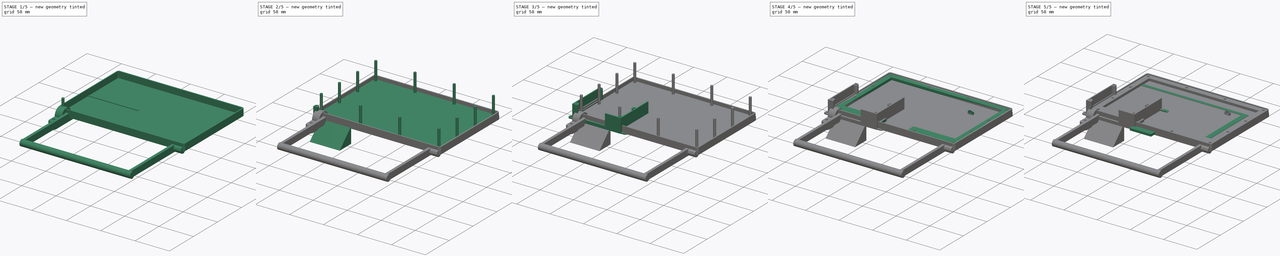
[diagram: build sequence overview — one tinted view per stage of 5, left to right]
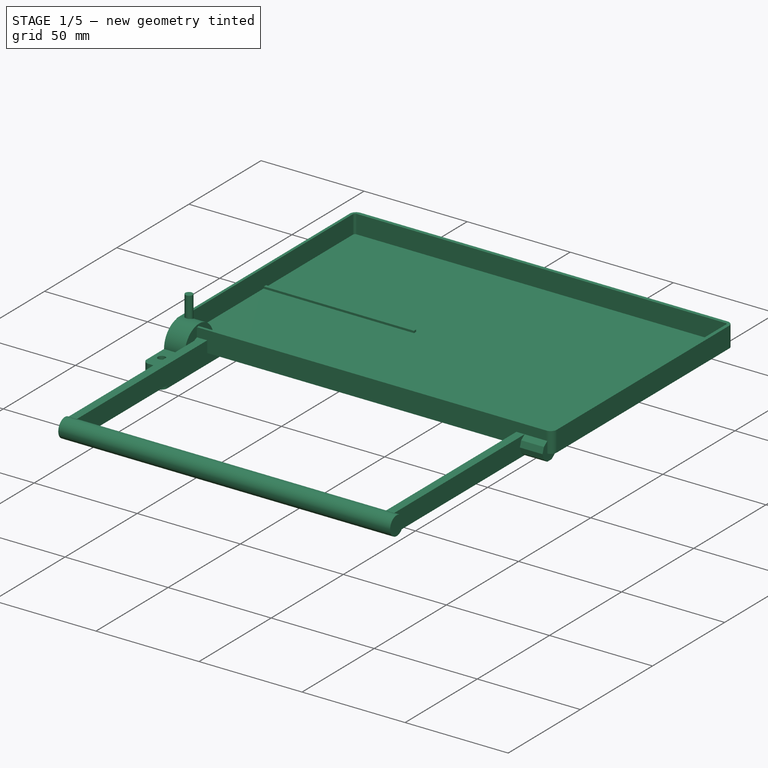
[diagram: stage 1 of 5 — iso view after this stage's code; geometry added in this stage tinted green]
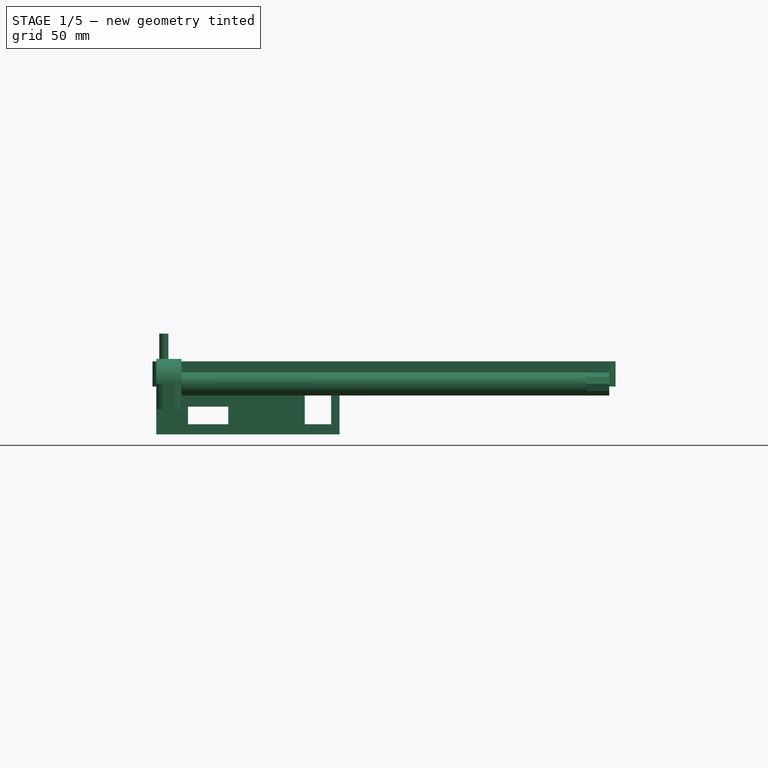
[diagram: stage 1 of 5 — front view after this stage's code; geometry added in this stage tinted green]
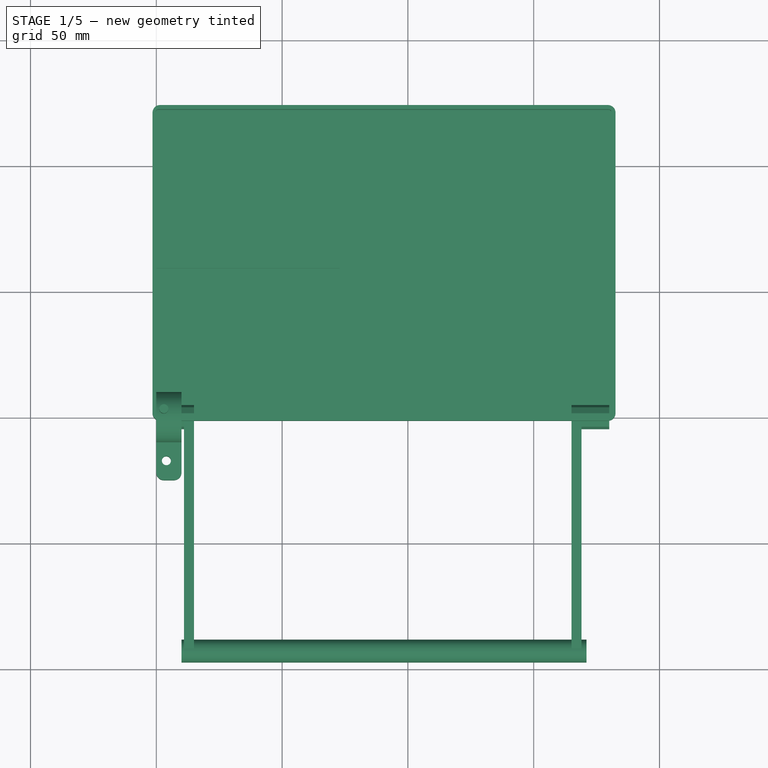
[diagram: stage 1 of 5 — top view after this stage's code; geometry added in this stage tinted green]
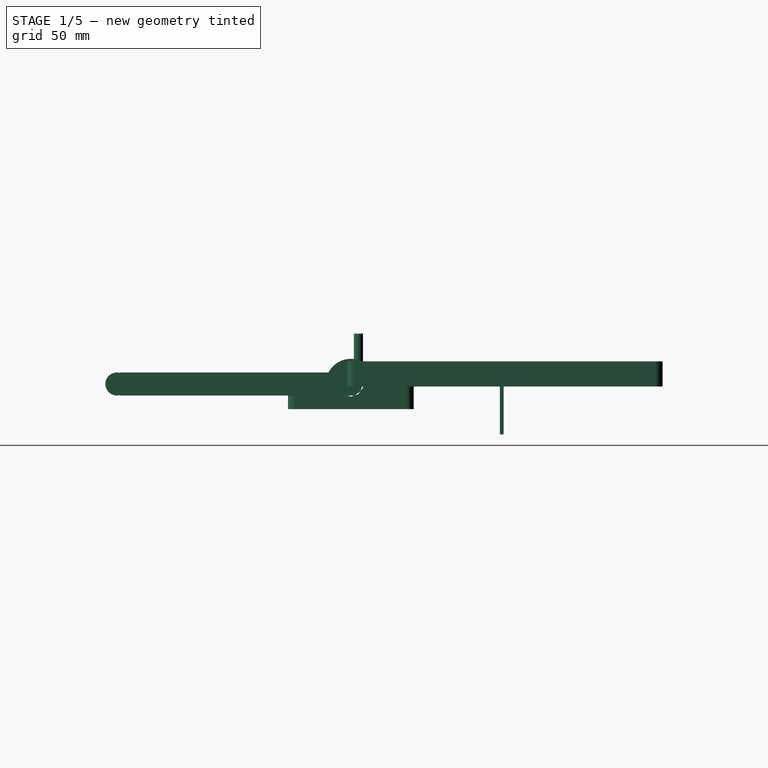
[diagram: stage 1 of 5 — right view after this stage's code; geometry added in this stage tinted green]
FCSTD DOCUMENT  (FreeCAD 0.18.4R)
Label: display
License: All rights reserved
LicenseURL: http://en.wikipedia.org/wiki/All_rights_reserved
objects: Part::Box×42, PartDesign::Body×20, Part::MultiFuse×15, Sketcher::SketchObject×14, App::Part×13, Part::Cylinder×13, PartDesign::Pad×11, Part::FeaturePython×9, PartDesign::FeatureBase×9, Part::Cut×8, Part::Fillet×6, Part::Compound×5, Part::Part2DObjectPython×4, Part::Mirroring×4, Path::FeaturePython×3, Part::RegularPolygon×2, Part::Extrusion×2, Spreadsheet::Sheet×1, PartDesign::AdditiveLoft×1, App::FeaturePython×1, +3 more types
note: 178 computed .brp shape members not serialized (recipe doc carries the construction recipe); baked Part::Feature solids carry a one-line shape summary decoded from their .brp

FEATURE [PartDesign::Body] Body023
  Group = -> [Sketch017,Pad010]
  Origin = -> Origin035
  Tip = -> Pad010
FEATURE [Part::Box] Box038  label="Cube018"
  AttacherType = Attacher::AttachEngine3D
  Height = 21
  Length = 72.8
  Placement = pos=(0,59.2,-20) rot=(0,0,1;0rad)
  Width = 1.5
  expr: Length = p.pcb_length + 2 * p.pcb_pad
  expr: Width = p.wall
FEATURE [Part::Cylinder] Cylinder008
  Angle = 360
  AttacherType = Attacher::AttachEngine3D
  Height = 20
  Placement = pos=(3,3,0) rot=(0,0,1;0rad)
  Radius = 1.8
FEATURE [Part::Box] Box040  label="power hole"
  AttacherType = Attacher::AttachEngine3D
  Height = 12
  Length = 10.5
  Placement = pos=(59,45,-16) rot=(0,0,1;0rad)
  Width = 20
FEATURE [Part::Box] Box041  label="hdmi hole"
  AttacherType = Attacher::AttachEngine3D
  Height = 7
  Length = 16
  Placement = pos=(12.6,45,-16) rot=(0,0,1;0rad)
  Width = 20
FEATURE [Part::MultiFuse] Fusion011
  Shapes = -> [Box040,Box041]
FEATURE [Part::Cut] Cut005
  Base = -> Box038
  Tool = -> Fusion011
FEATURE [App::Part] Part010  label="pcb top box part"
  Group = -> [Box037,Body021,Body022,Body023,Box038,Box039,Cylinder005,Cylinder006,Cylinder007,Cylinder008,Fusion010,Cut004,Box040,Box041,Fusion011,Cut005,Compound003]
  Origin = -> Origin031
  Placement = pos=(63,29,32.6) rot=(0,0,1;0rad)
FEATURE [Part::Box] Box042  label="Cube020"
  AttacherType = Attacher::AttachEngine3D
  Height = 10
  Length = 10
  Placement = pos=(0,-25,-10) rot=(0,0,1;0rad)
  Width = 50
FEATURE [Part::Fillet] Fillet004
  Base = -> Box042
  Edges = 4 edges r=3: [Edge1,Edge3,Edge5,Edge7]
FEATURE [Part::Cylinder] Cylinder010
  Angle = 360
  AttacherType = Attacher::AttachEngine3D
  Height = 161
  Placement = pos=(10,-93,0) rot=(0,1,0;1.5708rad)
  Radius = 4.57
  expr: Height = p.display_length + 2 * p.display_side_margin - 2 * 10
FEATURE [Part::RegularPolygon] RegularPolygon  label="Regular polygon"
  AttacherType = Attacher::AttachEngine3D
  Circumradius = 5
  Polygon = 10
FEATURE [Part::Extrusion] Extrude
  Base = -> RegularPolygon
  Dir = (0,0,1)
  DirMode = 2
  FaceMakerClass = Part::FaceMakerBullseye
  LengthFwd = 10
  LengthRev = 0
  Placement = pos=(0,0,0) rot=(0,1,0;1.5708rad)
  Solid = true
  Symmetric = false
FEATURE [Part::Cylinder] Cylinder011
  Angle = 360
  AttacherType = Attacher::AttachEngine3D
  Height = 10
  Placement = pos=(-1.1e-15,0,0) rot=(0,1,0;1.5708rad)
  Radius = 10
FEATURE [Part::MultiFuse] Fusion012
  Shapes = -> [Cylinder011,Fillet004]
FEATURE [Part::Cylinder] Cylinder012
  Angle = 360
  AttacherType = Attacher::AttachEngine3D
  Height = 20
  Placement = pos=(4,-17.3,-11) rot=(0,0,1;0rad)
  Radius = 1.8
FEATURE [Part::Cylinder] Cylinder013
  Angle = 360
  AttacherType = Attacher::AttachEngine3D
  Height = 20
  Placement = pos=(4,21,-11) rot=(0,0,1;0rad)
  Radius = 1.8
FEATURE [Part::MultiFuse] Fusion013
  Shapes = -> [Cylinder013,Cylinder012,Extrude]
FEATURE [Part::Cut] Cut006
  Base = -> Fusion012
  Tool = -> Fusion013
FEATURE [Part::Box] Box043  label="Cube021"
  AttacherType = Attacher::AttachEngine3D
  Height = 9.13
  Length = 4
  Placement = pos=(11,-92,-4.57) rot=(0,0,1;0rad)
  Width = 92
FEATURE [Part::RegularPolygon] RegularPolygon001  label="Smaller polygon"
  AttacherType = Attacher::AttachEngine3D
  Circumradius = 4.8
  Placement = pos=(0,0,0) rot=(0,0,1;0.314159rad)
  Polygon = 10
FEATURE [Part::Extrusion] Extrude001
  Base = -> RegularPolygon001
  Dir = (0,0,1)
  DirMode = 2
  FaceMakerClass = Part::FaceMakerBullseye
  LengthFwd = 15
  LengthRev = 0
  Placement = pos=(0,0,0) rot=(0,1,0;1.5708rad)
  Solid = true
  Symmetric = false
FEATURE [Part::MultiFuse] Fusion014
  Shapes = -> [Extrude001,Box043]
FEATURE [Part::Mirroring] Part__Mirroring003  label="Cube021 (Mirror #4)"
  Base = (90,0,0)
  Normal = (1,0,0)
  Source = -> Fusion014
FEATURE [Part::Compound] Compound004  label="boss compound"
  Links = -> [Cylinder010,Part__Mirroring003,Fusion014]
FEATURE [App::Part] Part011  label="boss part"
  Group = -> [Box042,Fillet004,RegularPolygon,Extrude,Cylinder011,Fusion012,Cylinder012,Cylinder013,Fusion013,Cut006,Cylinder010,Box043,Part__Mirroring003,Extrude001,RegularPolygon001,Fusion014,Compound004]
  Origin = -> Origin037
  Placement = pos=(0,97.5,21.1) rot=(0,0,1;0rad)
  expr: Placement.Base.z = p.wall + p.display_height + p.display_back_space + 3.3 + 10
FEATURE [Part::Box] Box044  label="Cube022"
  AttacherType = Attacher::AttachEngine3D
  Height = 10
  Length = 181
  Placement = pos=(-0.2,-0.2,0) rot=(0,0,1;0rad)
  Width = 122.4
  expr: Width = p.display_width + p.display_top_margin + p.display_extra_bottom
  expr: Length = p.display_length + 2 * p.display_side_margin
FEATURE [Part::Box] Box045  label="Cube023"
  AttacherType = Attacher::AttachEngine3D
  Height = 10
  Length = 184
  Placement = pos=(-1.5,-1.5,-1) rot=(0,0,1;0rad)
  Width = 125.4
  expr: Placement.Base.y = -p.wall
  expr: Placement.Base.x = -p.wall
  expr: Width = p.display_width + p.display_top_margin + p.display_extra_bottom + 2 * p.wall
  expr: Length = p.display_length + 2 * p.display_side_margin + 2 * p.wall
FEATURE [Part::Cut] Cut007
  Base = -> Box045
  Tool = -> Box044
FEATURE [Part::Fillet] Fillet005
  Base = -> Cut007
  Edges = 8 edges: [Edge1 r=3,Edge3 r=3,Edge6 r=3,Edge15 r=3,Edge17 r=1,Edge18 r=1,Edge20 r=1,Edge22 r=1]
FEATURE [App::Part] Part012  label="storage cover part"
  Group = -> [Box044,Box045,Cut007,Fillet005]
  Origin = -> Origin038
  Placement = pos=(0,0,-4) rot=(0,0,1;0rad)
note: 4 file-system paths scrubbed to <path> (originals preserved in the JSON sidecar)
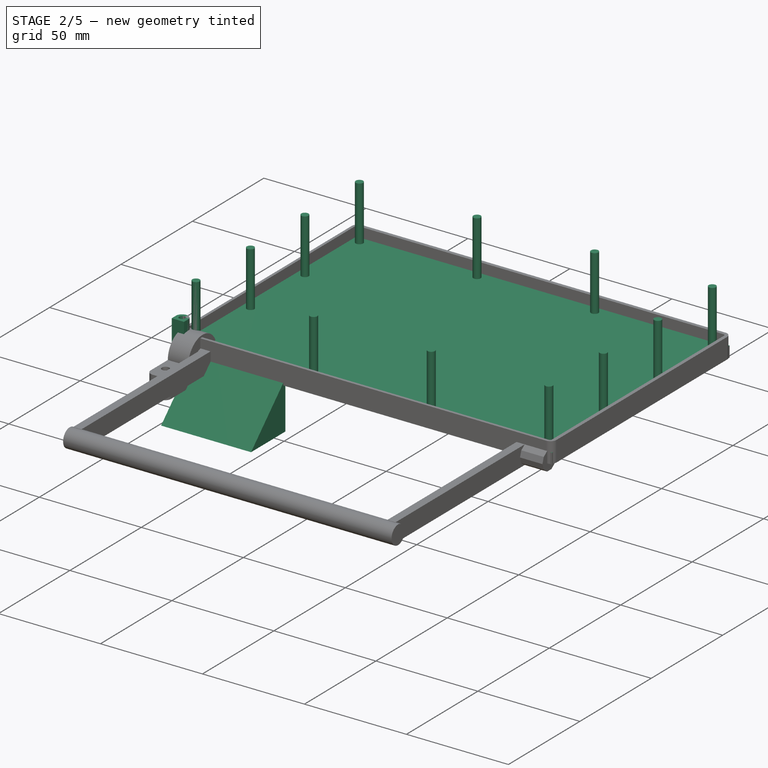
[diagram: stage 2 of 5 — iso view after this stage's code; geometry added in this stage tinted green]
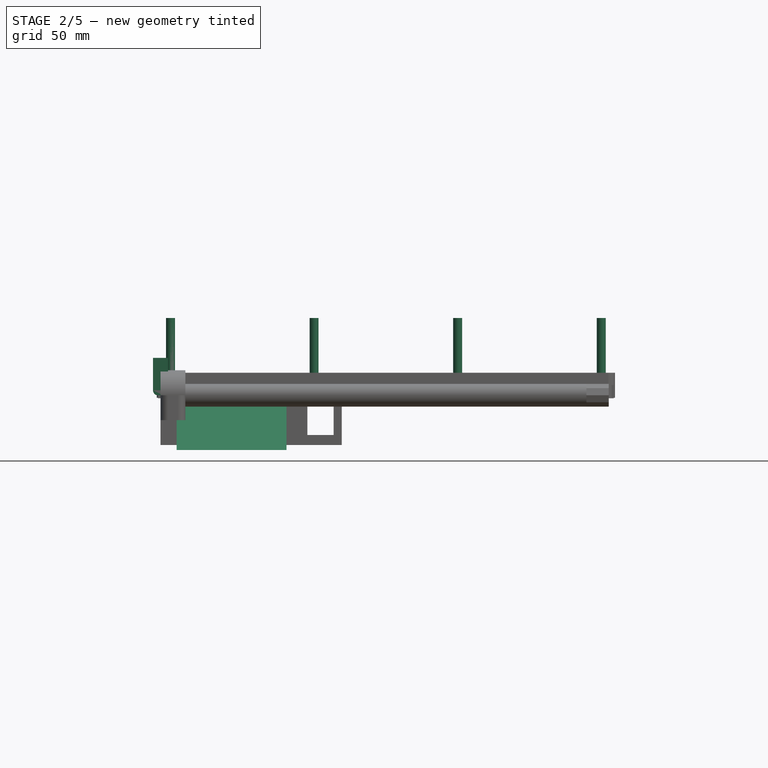
[diagram: stage 2 of 5 — front view after this stage's code; geometry added in this stage tinted green]
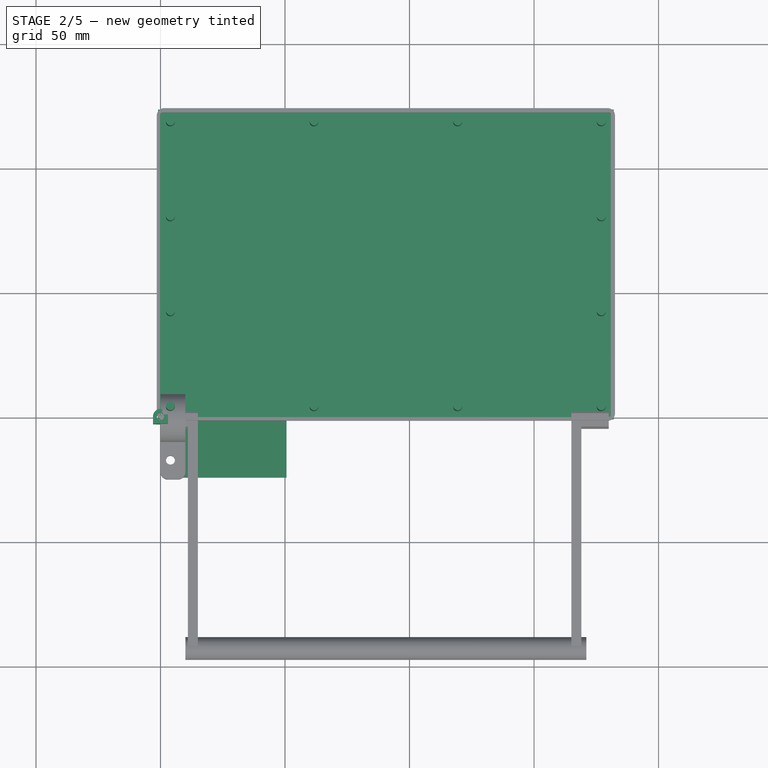
[diagram: stage 2 of 5 — top view after this stage's code; geometry added in this stage tinted green]
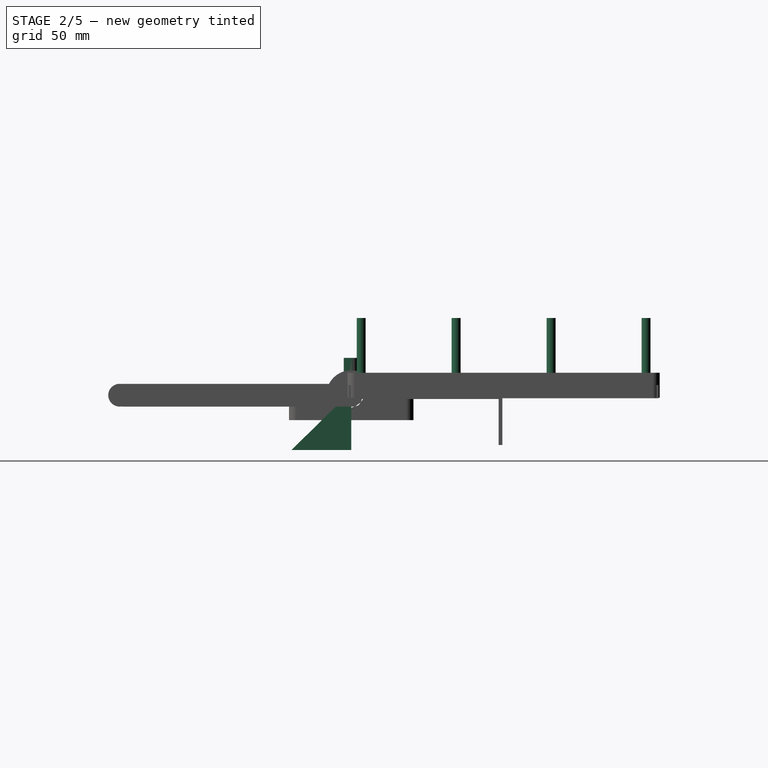
[diagram: stage 2 of 5 — right view after this stage's code; geometry added in this stage tinted green]
FEATURE [Part::Cylinder] Cylinder003
  Angle = 360
  AttacherType = Attacher::AttachEngine3D
  Height = 30
  Placement = pos=(4,4,1) rot=(0,0,1;0rad)
  Radius = 1.8
  expr: Placement.Base.y = p.display_side_margin / 2
  expr: Placement.Base.x = p.display_side_margin / 2
FEATURE [Part::FeaturePython] Array002  # Draft array (typed FeaturePython)
  Angle = 360
  ArrayType = 0
  Axis = (0,0,1)
  Base = -> Cylinder003
  Center = (0,0,0)
  Fuse = false
  IntervalAxis = (0,0,0)
  IntervalX = (1,0,0)
  IntervalY = (0,38.1333,0)
  IntervalZ = (0,0,1)
  NumberPolar = 1
  NumberX = 1
  NumberY = 4
  NumberZ = 1
  expr: IntervalY.y = (p.display_width + p.display_top_margin + p.display_extra_bottom - p.display_side_margin) / 3
FEATURE [Part::FeaturePython] Array003  # Draft array (typed FeaturePython)
  Angle = 360
  ArrayType = 0
  Axis = (0,0,1)
  Base = -> Array002
  Center = (0,0,0)
  Fuse = false
  IntervalAxis = (0,0,0)
  IntervalX = (173,0,0)
  IntervalY = (0,1,0)
  IntervalZ = (0,0,1)
  NumberPolar = 1
  NumberX = 2
  NumberY = 1
  NumberZ = 1
  expr: IntervalX.x = p.display_length + p.display_side_margin
FEATURE [Part::FeaturePython] Array004  # Draft array (typed FeaturePython)
  Angle = 360
  ArrayType = 0
  Axis = (0,0,1)
  Base = -> Cylinder003
  Center = (0,0,0)
  Fuse = false
  IntervalAxis = (0,0,0)
  IntervalX = (57.6667,0,0)
  IntervalY = (0,1,0)
  IntervalZ = (0,0,1)
  NumberPolar = 1
  NumberX = 4
  NumberY = 1
  NumberZ = 1
  expr: IntervalX.x = (p.display_length + p.display_side_margin) / 3
FEATURE [Part::FeaturePython] Array005  # Draft array (typed FeaturePython)
  Angle = 360
  ArrayType = 0
  Axis = (0,0,1)
  Base = -> Array004
  Center = (0,0,0)
  Fuse = false
  IntervalAxis = (0,0,0)
  IntervalX = (1,0,0)
  IntervalY = (0,114.4,0)
  IntervalZ = (0,0,1)
  NumberPolar = 1
  NumberX = 1
  NumberY = 2
  NumberZ = 1
  expr: IntervalY.y = p.display_width + p.display_top_margin + p.display_extra_bottom - p.display_side_margin
FEATURE [Sketcher::SketchObject] Sketch013  label="flat ear sketch001"
  MapMode = 5
  sketch-geometry (5):
    g0: LineSegment StartX=-3 StartY=4e-16 StartZ=0 EndX=-3 EndY=-3 EndZ=0
    g1: LineSegment StartX=3 StartY=-3 StartZ=0 EndX=-3 EndY=-3 EndZ=0
    g2: LineSegment StartX=3 StartY=-3 StartZ=0 EndX=3 EndY=0 EndZ=0
    g3: ArcOfCircle CenterX=0 CenterY=0 CenterZ=0 NormalX=0 NormalY=0 NormalZ=1 AngleXU=0 Radius=3 StartAngle=0 EndAngle=3.14159
    g4: Circle CenterX=0 CenterY=0 CenterZ=0 NormalX=0 NormalY=0 NormalZ=1 AngleXU=0 Radius=1.45
  constraints (14):
    c: PointOnObject(g0,g-1)
    c: Vertical(g0)
    c: Coincident(g1,g0)
    c: Coincident(g2,g1)
    c: PointOnObject(g2,g-1)
    c: Vertical(g2)
    c: Coincident(g3,g-1)
    c: Coincident(g3,g0)
    c: Coincident(g3,g2)
    c: Coincident(g4,g3)
    c: Radius(g4) = 1.45
    c: DistanceX(g0,g2) = 6
    c: DistanceY(g0,g0) = 3
    c: Horizontal(g1)
FEATURE [App::Part] Part009  label="tall ear part"
  Origin = -> Origin025
FEATURE [PartDesign::Pad] Pad006
  Length = 15
  Length2 = 100
  Profile = -> Sketch013
  Type = 0
FEATURE [PartDesign::Body] Body018  label="taller ear body"
  Group = -> [Sketch014,Pad007]
  Origin = -> Origin028
  Tip = -> Pad007
FEATURE [Part::Fillet] Fillet002
  Base = -> Pad006
  Edges = 1 edges r=2: [Edge11]
FEATURE [PartDesign::FeatureBase] BaseFeature
  BaseFeature = -> Fillet002
FEATURE [PartDesign::Body] Body017  label="tall ear clone 002"
  BaseFeature = -> Body015
  Group = -> [Clone006]
  Origin = -> Origin027
  Placement = pos=(65.6,-1,5) rot=(0,0,1;1.5708rad)
  Tip = -> Clone006
FEATURE [PartDesign::FeatureBase] Clone007
  BaseFeature = -> Body015
FEATURE [PartDesign::Body] Body019  label="tall ear clone 003"
  BaseFeature = -> Body015
  Group = -> [Clone007]
  Origin = -> Origin029
  Placement = pos=(-1,52,5) rot=(0,0,-1;1.5708rad)
  Tip = -> Clone007
FEATURE [PartDesign::FeatureBase] Clone008
  BaseFeature = -> Body015
FEATURE [App::Part] Part007  label="pcb holder v2"
  Group = -> [Body012,Box020,Box021,Box022,Box023,Box024,Fusion007,Box027,Box028,Box029,Body014,Array006,Part__Mirroring002,Box026,Fusion008,Box032,Box033,Box035,Box036,Body016,Body017,Body019,Body020,Body013,Sketch013,Body015,Pad006,Fillet002,Compound002,Fillet003]
  Origin = -> Origin019
  Placement = pos=(67,33,12.6) rot=(0,0,1;0rad)
FEATURE [Part::Box] Box037  label="Cube017"
  AttacherType = Attacher::AttachEngine3D
  Height = 1.5
  Length = 72.8
  Width = 60.7
  expr: Height = p.wall
  expr: Width = p.pcb_width + p.pcb_pad + p.wall + 0.2
  expr: Length = p.pcb_length + 2 * p.pcb_pad
FEATURE [Sketcher::SketchObject] Sketch015
  AttachmentOffset = pos=(0,0,50.6) rot=(0,0,1;0rad)
  MapMode = 5
  Placement = pos=(50.6,-1.12e-14,1.12e-14) rot=(0.57735,0.57735,0.57735;2.0944rad)
  Support = -> [YZ_Plane033]
  expr: Constraints[8] = p.wall
  sketch-geometry (3):
    g0: LineSegment StartX=0 StartY=1.5 StartZ=0 EndX=0 EndY=-22 EndZ=0
    g1: LineSegment StartX=0 StartY=-22 StartZ=0 EndX=-24 EndY=-22 EndZ=0
    g2: LineSegment StartX=-24 StartY=-22 StartZ=0 EndX=0 EndY=1.5 EndZ=0
  constraints (9):
    c: PointOnObject(g0,g-2)
    c: Vertical(g0)
    c: Coincident(g1,g0)
    c: Horizontal(g1)
    c: Coincident(g2,g1)
    c: Coincident(g2,g0)
    c: DistanceY(g0,g-1) = 22
    c: DistanceX(g1,g1) = 24
    c: DistanceY(g-1,g0) = 1.5
FEATURE [Sketcher::SketchObject] Sketch016
  AttachmentOffset = pos=(0,0,8) rot=(0,0,1;0rad)
  MapMode = 5
  Placement = pos=(8,-1.8e-15,1.8e-15) rot=(0.57735,0.57735,0.57735;2.0944rad)
  Support = -> [YZ_Plane034]
  expr: Constraints[6] = p.wall
  sketch-geometry (3):
    g0: LineSegment StartX=0 StartY=1.5 StartZ=0 EndX=0 EndY=-22 EndZ=0
    g1: LineSegment StartX=-24 StartY=-22 StartZ=0 EndX=0 EndY=1.5 EndZ=0
    g2: LineSegment StartX=-24 StartY=-22 StartZ=0 EndX=0 EndY=-22 EndZ=0
  constraints (9):
    c: Vertical(g0)
    c: Coincident(g1,g0)
    c: Coincident(g2,g1)
    c: Coincident(g2,g0)
    c: Horizontal(g2)
    c: DistanceY(g0,g-1) = 22
    c: DistanceY(g-1,g0) = 1.5
    c: DistanceX(g2,g2) = 24
    c: DistanceX(g0,g-1) = 0
FEATURE [PartDesign::Pad] Pad008
  Length = 1.5
  Length2 = 100
  Placement = pos=(0,0,0) rot=(0.57735,0.57735,0.57735;2.0944rad)
  Profile = -> Sketch015
  Reversed = true
  Type = 0
  expr: Length = p.wall
FEATURE [PartDesign::Body] Body021
  Group = -> [Sketch015,Pad008]
  Origin = -> Origin033
  Tip = -> Pad008
FEATURE [PartDesign::Pad] Pad009
  Length = 1.5
  Length2 = 100
  Placement = pos=(0,0,0) rot=(0.57735,0.57735,0.57735;2.0944rad)
  Profile = -> Sketch016
  Reversed = true
  Type = 0
  expr: Length = p.wall
FEATURE [PartDesign::Body] Body022
  Group = -> [Sketch016,Pad009]
  Origin = -> Origin034
  Tip = -> Pad009
FEATURE [Sketcher::SketchObject] Sketch017
  AttachmentOffset = pos=(0,0,8) rot=(0,0,1;0rad)
  MapMode = 5
  Placement = pos=(8,-1.8e-15,1.8e-15) rot=(0.57735,0.57735,0.57735;2.0944rad)
  Support = -> [YZ_Plane035]
  expr: Constraints[0] = p.wall
  expr: Constraints[1] = p.wall
  sketch-geometry (4):
    g0: LineSegment StartX=-24 StartY=-22 StartZ=0 EndX=-22.5 EndY=-22 EndZ=0
    g1: LineSegment StartX=-22.5 StartY=-22 StartZ=0 EndX=0 EndY=0 EndZ=0
    g2: LineSegment StartX=0 StartY=1.5 StartZ=0 EndX=-24 EndY=-22 EndZ=0
    g3: LineSegment StartX=0 StartY=1.5 StartZ=0 EndX=0 EndY=0 EndZ=0
  constraints (11):
    c: DistanceX(g0,g0) = 1.5
    c: DistanceY(g3,g3) = 1.5
    c: Coincident(g2,g0)
    c: Horizontal(g0)
    c: Coincident(g0,g1)
    c: Coincident(g3,g2)
    c: Coincident(g1,g3)
    c: Coincident(g1,g-1)
    c: Vertical(g3)
    c: DistanceY(g0,g1) = 22
    c: DistanceX(g0,g1) = 24
FEATURE [PartDesign::Pad] Pad010
  Length = 42.5
  Length2 = 100
  Placement = pos=(0,0,0) rot=(0.57735,0.57735,0.57735;2.0944rad)
  Profile = -> Sketch017
  Type = 0
FEATURE [Part::Box] Box039  label="Cube019"
  AttacherType = Attacher::AttachEngine3D
  Height = 1.5
  Length = 35.8
  Placement = pos=(11,-1,-1.5) rot=(0,0,1;0rad)
  Width = 61.7
  expr: Placement.Base.z = -p.wall
  expr: Height = p.wall
  expr: Width = p.pcb_width + p.pcb_pad + p.wall + 0.2 + 1
FEATURE [App::FeaturePython] SetupSheet  # Path/CAM operation (typed FeaturePython)
  ClearanceHeightExpression = OpStockZMax+SetupSheet.ClearanceHeightOffset
  ClearanceHeightOffset = 0
  FinalDepthExpression = OpFinalDepth
  HorizRapid = 1000
  SafeHeightExpression = OpStockZMax+SetupSheet.SafeHeightOffset
  SafeHeightOffset = 0
  StartDepthExpression = OpStartDepth
  StepDownExpression = OpToolDiameter
  VertRapid = 1000
FEATURE [Path::FeaturePython] T3__laser  label="T3: laser"  # Path/CAM operation (typed FeaturePython)
  HorizFeed = 0.5
  HorizRapid = 1000
  SpindleDir = 0
  SpindleSpeed = 1000
  ToolNumber = 3
  VertFeed = 0.5
  VertRapid = 1000
  expr: HorizRapid = SetupSheet.HorizRapid
  expr: VertRapid = SetupSheet.VertRapid
FEATURE [Part::MultiFuse] Fusion009  label="side wider holes fusion"
  Shapes = -> [Array003,Array005]
FEATURE [PartDesign::FeatureBase] Clone010
  BaseFeature = -> Fusion009
FEATURE [App::Part] Part006  label="display back wall part"
  Group = -> [Box018,Cut003,Box019,Fillet001,Fusion006,Cylinder004,Array007,Body024]
  Origin = -> Origin015
  Placement = pos=(0,0,7.8) rot=(0,0,1;0rad)
  expr: Placement.Base.z = p.wall + p.display_height + p.display_back_space
FEATURE [Part::Feature] Cut003_solid001  label="display back cut (Solid)"
  shape: bbox 181 x 122.4 x 3.3 mm, 30 faces (baked)
FEATURE [Part::FeaturePython] Clone011  label="Model-display back cut (Solid)"  # Draft clone (typed FeaturePython)
  AttacherType = Attacher::AttachEngine3D
  Fuse = false
  Objects = -> [Cut003_solid001]
  PathResource = Model
  Scale = (1,1,1)
FEATURE [App::DocumentObjectGroup] Model
  Group = -> [Clone011]
FEATURE [Part::FeaturePython] Stock  # WARN: FeaturePython — macro-defined, semantics opaque (R4)
  Base = -> Model
  ExtXneg = 1
  ExtXpos = 1
  ExtYneg = 1
  ExtYpos = 1
  ExtZneg = 1
  ExtZpos = 1
  Placement = pos=(0,0,-0.2) rot=(0,0,1;0rad)
  StockType = FromBase
FEATURE [Path::FeaturePython] Engrave  # Path/CAM operation (typed FeaturePython)
  Active = true
  Base = -> [Clone011]
  ClearanceHeight = 0
  FinalDepth = 0
  OpFinalDepth = 3.1
  OpStartDepth = 3.3
  OpStockZMax = 4.1
  OpStockZMin = -1.2
  OpToolDiameter = 0.2
  SafeHeight = 0
  StartDepth = 0
  StartVertex = 0
  StepDown = 0.2
  ToolController = -> T3__laser
  expr: StepDown = OpToolDiameter
FEATURE [Path::FeatureCompoundPython] Operations  # Path/CAM operation (typed FeaturePython)
  Group = -> [Engrave]
  UsePlacements = false
FEATURE [Path::FeaturePython] Job  label="display back wall job"  # Path/CAM operation (typed FeaturePython)
  GeometryTolerance = 0.01
  Model = -> Model
  Operations = -> Operations
  PostProcessor = 1
  PostProcessorOutputFile = <userpath>/work/roborep/freecad/display/display_back_wall.gcode
  SetupSheet = -> SetupSheet
  Stock = -> Stock
  ToolController = -> [T3__laser]
FEATURE [Part::Cylinder] Cylinder005
  Angle = 360
  AttacherType = Attacher::AttachEngine3D
  Height = 20
  Placement = pos=(69.6,33,0) rot=(0,0,1;0rad)
  Radius = 1.8
FEATURE [Part::Cylinder] Cylinder006
  Angle = 360
  AttacherType = Attacher::AttachEngine3D
  Height = 20
  Placement = pos=(69.6,3,0) rot=(0,0,1;0rad)
  Radius = 1.8
FEATURE [Part::Cylinder] Cylinder007
  Angle = 360
  AttacherType = Attacher::AttachEngine3D
  Height = 20
  Placement = pos=(3,56,0) rot=(0,0,1;0rad)
  Radius = 1.8
FEATURE [Part::MultiFuse] Fusion010
  Placement = pos=(0,0,-10) rot=(0,0,1;0rad)
  Shapes = -> [Cylinder005,Cylinder006,Cylinder007,Cylinder008]
FEATURE [Part::Cut] Cut004
  Base = -> Box037
  Tool = -> Fusion010
FEATURE [Part::Compound] Compound003  label="pcb top box compaund"
  Links = -> [Body021,Body022,Body023,Box039,Cut004,Cut005]
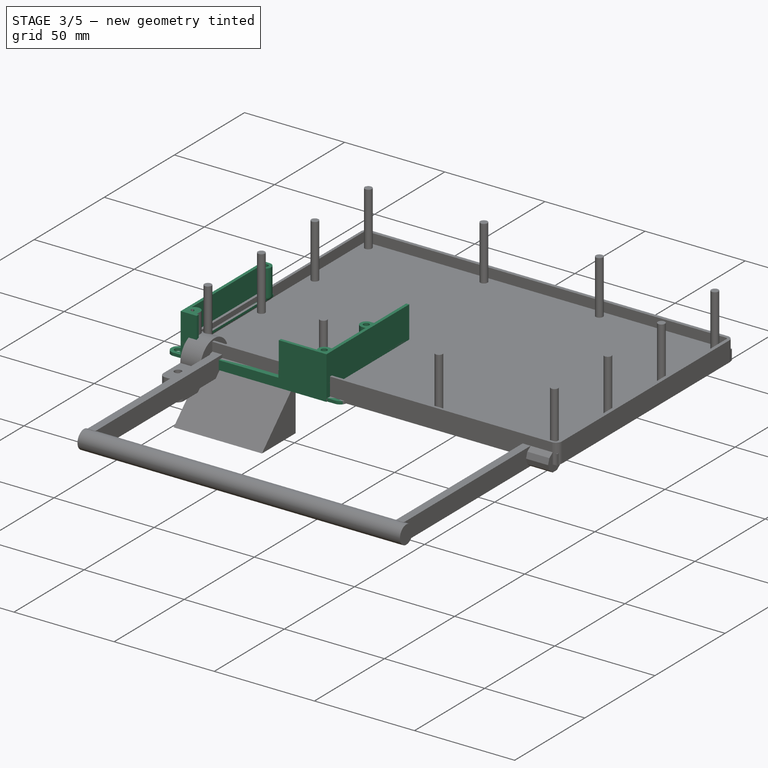
[diagram: stage 3 of 5 — iso view after this stage's code; geometry added in this stage tinted green]
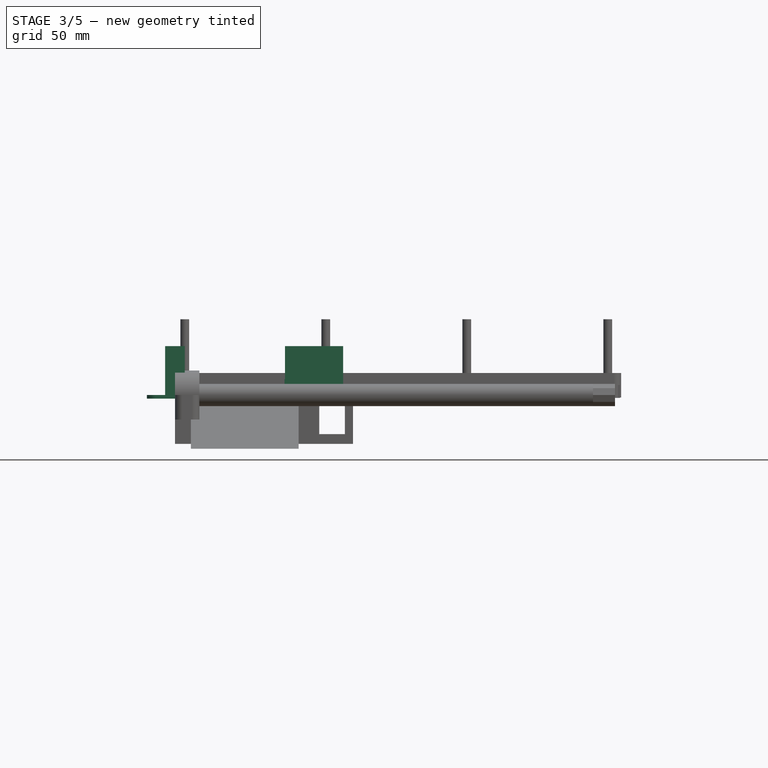
[diagram: stage 3 of 5 — front view after this stage's code; geometry added in this stage tinted green]
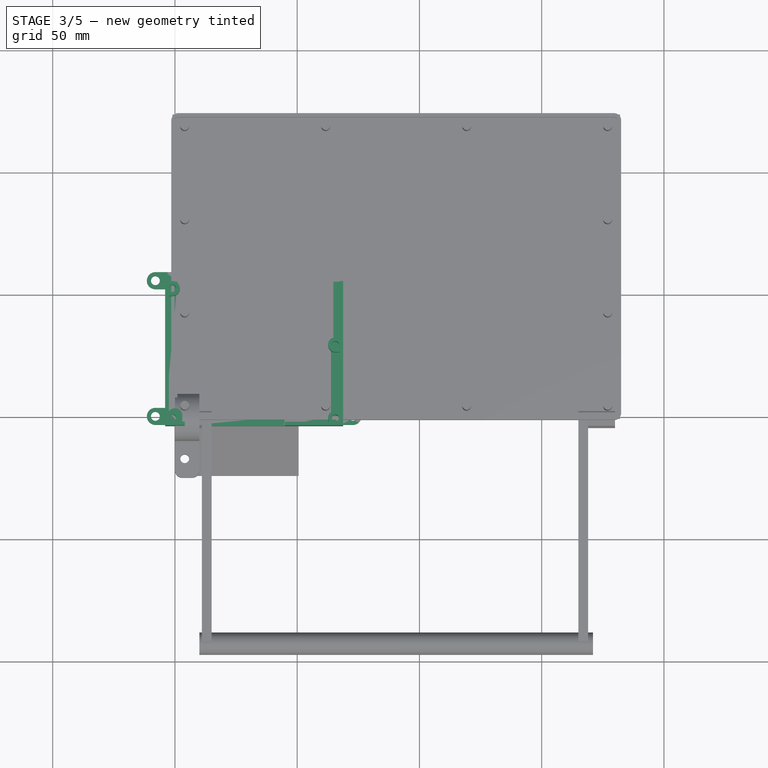
[diagram: stage 3 of 5 — top view after this stage's code; geometry added in this stage tinted green]
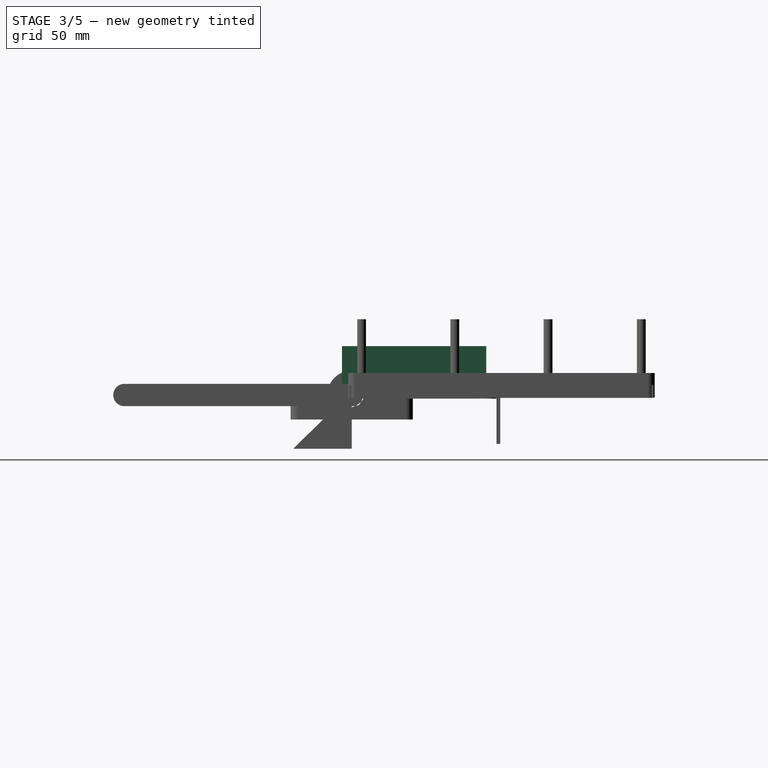
[diagram: stage 3 of 5 — right view after this stage's code; geometry added in this stage tinted green]
FEATURE [App::Part] Part  label="display holder part"
  Group = -> [Body,Body002,Body001,Box009,Array,Body008,Part__Mirroring001]
  Origin = -> Origin
FEATURE [PartDesign::Body] Body007
  Group = -> [AdditiveLoft]
  Origin = -> Origin012
  Tip = -> AdditiveLoft
FEATURE [App::Part] Part004  label="screw hole part"
  Group = -> [Sketch006,Cylinder002,Cut001,Body007,Sketch010,CopySketch006]
  Origin = -> Origin008
  Placement = pos=(0,0,14) rot=(0,0,1;0rad)
FEATURE [Sketcher::SketchObject] Sketch011
  MapMode = 5
  Support = -> [XY_Plane020]
  expr: Constraints[21] = p.wall + p.pcb_pad
  expr: Constraints[20] = p.wall + p.pcb_pad
  expr: Constraints[23] = p.wall + p.pcb_pad
  expr: Constraints[19] = 2 * p.pcb_pad + p.pcb_width
  expr: Constraints[18] = p.pcb_pad
  expr: Constraints[22] = p.wall + p.pcb_pad
  expr: Constraints[17] = p.pcb_pad
  expr: Constraints[16] = p.pcb_length + 2 * p.pcb_pad
  sketch-geometry (8):
    g0: LineSegment StartX=-4 StartY=59 StartZ=0 EndX=68.8 EndY=59 EndZ=0
    g1: LineSegment StartX=68.8 StartY=59 StartZ=0 EndX=68.8 EndY=-4 EndZ=0
    g2: LineSegment StartX=68.8 StartY=-4 StartZ=0 EndX=-4 EndY=-4 EndZ=0
    g3: LineSegment StartX=-4 StartY=-4 StartZ=0 EndX=-4 EndY=59 EndZ=0
    g4: LineSegment StartX=1.5 StartY=53.5 StartZ=0 EndX=63.3 EndY=53.5 EndZ=0
    g5: LineSegment StartX=63.3 StartY=53.5 StartZ=0 EndX=63.3 EndY=1.5 EndZ=0
    g6: LineSegment StartX=63.3 StartY=1.5 StartZ=0 EndX=1.5 EndY=1.5 EndZ=0
    g7: LineSegment StartX=1.5 StartY=1.5 StartZ=0 EndX=1.5 EndY=53.5 EndZ=0
  constraints (24):
    c: Coincident(g0,g1)
    c: Coincident(g1,g2)
    c: Coincident(g2,g3)
    c: Coincident(g3,g0)
    c: Horizontal(g0)
    c: Horizontal(g2)
    c: Vertical(g1)
    c: Vertical(g3)
    c: Coincident(g4,g5)
    c: Coincident(g5,g6)
    c: Coincident(g6,g7)
    c: Coincident(g7,g4)
    c: Horizontal(g4)
    c: Horizontal(g6)
    c: Vertical(g5)
    c: Vertical(g7)
    c: DistanceX(g0,g0) = 72.8
    c: DistanceX(g2,g-1) = 4
    c: DistanceY(g2,g-1) = 4
    c: DistanceY(g3,g3) = 63
    c: DistanceX(g2,g6) = 5.5
    c: DistanceY(g2,g6) = 5.5
    c: DistanceX(g5,g1) = 5.5
    c: DistanceY(g4,g0) = 5.5
FEATURE [PartDesign::Pad] Pad004
  Length = 1.5
  Length2 = 100
  Profile = -> Sketch011
  Reversed = true
  Type = 0
  expr: Length = p.wall
FEATURE [PartDesign::Body] Body012  label="bottom body001"
  Group = -> [Sketch011,Pad004]
  Origin = -> Origin020
  Tip = -> Pad004
FEATURE [Part::Box] Box020  label="top cover002"
  AttacherType = Attacher::AttachEngine3D
  Height = 1.5
  Length = 5
  Placement = pos=(-4,0,2) rot=(0,0,1;0rad)
  Width = 55
  expr: Placement.Base.x = -p.pcb_pad
  expr: Width = p.pcb_width
  expr: Length = p.pcb_pad + 1
  expr: Placement.Base.z = p.pcb_height
  expr: Height = p.wall
FEATURE [Part::Box] Box021  label="middle_pad003"
  AttacherType = Attacher::AttachEngine3D
  Height = 2
  Length = 4
  Placement = pos=(-4,0,0) rot=(0,0,1;0rad)
  Width = 55
  expr: Placement.Base.x = -p.pcb_pad
  expr: Width = p.pcb_width
  expr: Length = p.pcb_pad
  expr: Height = p.pcb_height
FEATURE [Part::Box] Box022  label="middle_pad004"
  AttacherType = Attacher::AttachEngine3D
  Height = 2
  Length = 4
  Placement = pos=(64.8,0,0) rot=(0,0,1;0rad)
  Width = 55
  expr: Placement.Base.x = p.pcb_length
  expr: Width = p.pcb_width
  expr: Length = p.pcb_pad
  expr: Height = p.pcb_height
FEATURE [Part::Box] Box023  label="top cover003"
  AttacherType = Attacher::AttachEngine3D
  Height = 1.5
  Length = 5
  Placement = pos=(63.8,0,2) rot=(0,0,1;0rad)
  Width = 30
  expr: Placement.Base.x = p.pcb_length - 1
  expr: Length = p.pcb_pad + 1
  expr: Placement.Base.z = p.pcb_height
  expr: Height = p.wall
FEATURE [Part::Box] Box024  label="middle_pad005"
  AttacherType = Attacher::AttachEngine3D
  Height = 3.5
  Length = 24
  Placement = pos=(44.8,-4,0) rot=(0,0,1;0rad)
  Width = 4
  expr: Placement.Base.y = -p.pcb_pad
  expr: Width = p.pcb_pad
  expr: Height = p.pcb_height + p.wall
FEATURE [Part::Box] Box026  label="side_pad001"
  AttacherType = Attacher::AttachEngine3D
  Height = 3.5
  Length = 8
  Placement = pos=(-4,-4,0) rot=(0,0,1;0rad)
  Width = 4
  expr: Placement.Base.x = -p.pcb_pad
  expr: Placement.Base.y = -p.pcb_pad
  expr: Width = p.pcb_pad
  expr: Height = p.pcb_height + p.wall
FEATURE [Part::MultiFuse] Fusion008
  Placement = pos=(0,0,3) rot=(0,0,1;0rad)
  Shapes = -> [Box020,Box021,Box022,Box023,Box024,Box026]
  expr: Placement.Base.z = p.pcb_under
FEATURE [Part::Box] Box027  label="Cube007"
  AttacherType = Attacher::AttachEngine3D
  Height = 3
  Length = 5.5
  Placement = pos=(-4,-4,0) rot=(0,0,1;0rad)
  Width = 59
  expr: Placement.Base.y = -p.pcb_pad
  expr: Placement.Base.x = -p.pcb_pad
  expr: Height = p.pcb_under
  expr: Width = p.pcb_width + p.pcb_pad
  expr: Length = p.pcb_pad + p.wall
FEATURE [Part::Box] Box028  label="Cube008"
  AttacherType = Attacher::AttachEngine3D
  Height = 3
  Length = 5.5
  Placement = pos=(63.3,-4,0) rot=(0,0,1;0rad)
  Width = 59
  expr: Placement.Base.y = -p.pcb_pad
  expr: Placement.Base.x = p.pcb_length - p.wall
  expr: Height = p.pcb_under
  expr: Width = p.pcb_width + p.pcb_pad
  expr: Length = p.pcb_pad + p.wall
FEATURE [Part::Box] Box029  label="Cube009"
  AttacherType = Attacher::AttachEngine3D
  Height = 3
  Length = 68.8
  Placement = pos=(-1.5,-4,0) rot=(0,0,1;0rad)
  Width = 5.5
  expr: Placement.Base.y = -p.pcb_pad
  expr: Placement.Base.x = -p.wall
  expr: Height = p.pcb_under
  expr: Width = p.wall + p.pcb_pad
  expr: Length = p.pcb_pad + p.pcb_length
FEATURE [Part::MultiFuse] Fusion007
  Shapes = -> [Body012,Fusion008,Box027,Box028,Box029]
FEATURE [Sketcher::SketchObject] Sketch012  label="flat ear sketch"
  MapMode = 5
  Support = -> [XY_Plane021]
  sketch-geometry (5):
    g0: LineSegment StartX=-3.5 StartY=-1.21108e-11 StartZ=0 EndX=-3.5 EndY=-5 EndZ=0
    g1: LineSegment StartX=3.5 StartY=-5 StartZ=0 EndX=-3.5 EndY=-5 EndZ=0
    g2: LineSegment StartX=3.5 StartY=-5 StartZ=0 EndX=3.5 EndY=0 EndZ=0
    g3: ArcOfCircle CenterX=0 CenterY=0 CenterZ=0 NormalX=0 NormalY=0 NormalZ=1 AngleXU=0 Radius=3.5 StartAngle=0 EndAngle=3.14159
    g4: Circle CenterX=0 CenterY=0 CenterZ=0 NormalX=0 NormalY=0 NormalZ=1 AngleXU=0 Radius=1.8
  constraints (14):
    c: PointOnObject(g0,g-1)
    c: Vertical(g0)
    c: Coincident(g1,g0)
    c: Coincident(g2,g1)
    c: PointOnObject(g2,g-1)
    c: Vertical(g2)
    c: Coincident(g3,g-1)
    c: Coincident(g3,g0)
    c: Coincident(g3,g2)
    c: Coincident(g4,g3)
    c: Radius(g4) = 1.8
    c: DistanceX(g0,g2) = 7
    c: DistanceY(g0,g0) = 5
    c: Horizontal(g1)
FEATURE [PartDesign::Pad] Pad005
  Length = 1.5
  Length2 = 100
  Profile = -> Sketch012
  Type = 0
  expr: Length = p.wall
FEATURE [PartDesign::Body] Body013  label="flat ear body"
  Group = -> [Sketch012,Pad005]
  Origin = -> Origin021
  Tip = -> Pad005
FEATURE [App::Part] Part008  label="flat ear part"
  Origin = -> Origin022
FEATURE [PartDesign::FeatureBase] Clone004
  BaseFeature = -> Body013
FEATURE [PartDesign::Body] Body014
  BaseFeature = -> Body013
  Group = -> [Clone004]
  Origin = -> Origin023
  Placement = pos=(72.8,0,-1.5) rot=(0,0,-1;1.5708rad)
  Tip = -> Clone004
  expr: Placement.Base.x = p.pcb_length + p.pcb_pad * 2
  expr: Placement.Base.z = -p002.wall
FEATURE [Part::FeaturePython] Array006  # Draft array (typed FeaturePython)
  Angle = 360
  ArrayType = 0
  Axis = (0,0,1)
  Base = -> Body014
  Center = (0,0,0)
  Fuse = false
  IntervalAxis = (0,0,0)
  IntervalX = (1,0,0)
  IntervalY = (0,55.5,0)
  IntervalZ = (0,0,1)
  NumberPolar = 1
  NumberX = 1
  NumberY = 2
  NumberZ = 1
FEATURE [Part::Mirroring] Part__Mirroring002  label="Array006 (Mirror #3)"
  Base = (32.4,0,0)
  Normal = (1,0,0)
  Source = -> Array006
FEATURE [Part::Box] Box032  label="Cube012"
  AttacherType = Attacher::AttachEngine3D
  Height = 20
  Length = 1.5
  Placement = pos=(-4,-4,0) rot=(0,0,1;0rad)
  Width = 59
  expr: Height = p.pcb_cover_height
  expr: Length = p.wall
FEATURE [Part::Box] Box033  label="Cube013"
  AttacherType = Attacher::AttachEngine3D
  Height = 20
  Length = 1.5
  Placement = pos=(67.3,-4,0) rot=(0,0,1;0rad)
  Width = 59
  expr: Height = p.pcb_cover_height
  expr: Length = p.wall
FEATURE [Part::Box] Box035  label="Cube015"
  AttacherType = Attacher::AttachEngine3D
  Height = 20
  Length = 8
  Placement = pos=(-4,-4,0) rot=(0,0,1;0rad)
  Width = 1.5
  expr: Width = p.wall
  expr: Height = p.pcb_cover_height
FEATURE [Part::Box] Box036  label="Cube016"
  AttacherType = Attacher::AttachEngine3D
  Height = 20
  Length = 23.54
  Placement = pos=(45,-4,0) rot=(0,0,1;0rad)
  Width = 1.5
  expr: Width = p.wall
  expr: Height = p.pcb_cover_height
FEATURE [Sketcher::SketchObject] Sketch014  label="flat ear sketch002"
  MapMode = 5
  Support = -> [XY_Plane028]
  sketch-geometry (5):
    g0: LineSegment StartX=-3 StartY=0 StartZ=0 EndX=-3 EndY=-3 EndZ=0
    g1: LineSegment StartX=3 StartY=-3 StartZ=0 EndX=-3 EndY=-3 EndZ=0
    g2: LineSegment StartX=3 StartY=-3 StartZ=0 EndX=3 EndY=0 EndZ=0
    g3: ArcOfCircle CenterX=0 CenterY=0 CenterZ=0 NormalX=0 NormalY=0 NormalZ=1 AngleXU=0 Radius=3 StartAngle=0 EndAngle=3.14159
    g4: Circle CenterX=0 CenterY=0 CenterZ=0 NormalX=0 NormalY=0 NormalZ=1 AngleXU=0 Radius=1.45
  constraints (14):
    c: PointOnObject(g0,g-1)
    c: Vertical(g0)
    c: Coincident(g1,g0)
    c: Coincident(g2,g1)
    c: PointOnObject(g2,g-1)
    c: Vertical(g2)
    c: Coincident(g3,g-1)
    c: Coincident(g3,g0)
    c: Coincident(g3,g2)
    c: Coincident(g4,g3)
    c: Radius(g4) = 1.45
    c: DistanceX(g0,g2) = 6
    c: DistanceY(g0,g0) = 3
    c: Horizontal(g1)
FEATURE [PartDesign::Pad] Pad007
  Length = 20
  Length2 = 100
  Profile = -> Sketch014
  Type = 0
FEATURE [PartDesign::Body] Body015  label="tall ear body"
  BaseFeature = -> Fillet002
  Group = -> [BaseFeature]
  Origin = -> Origin024
  Tip = -> BaseFeature
FEATURE [PartDesign::FeatureBase] Clone005
  BaseFeature = -> Body015
FEATURE [PartDesign::Body] Body016  label="tall ear clone 001"
  BaseFeature = -> Body015
  Group = -> [Clone005]
  Origin = -> Origin026
  Placement = pos=(-1,-1,5) rot=(0,0,-1;1.5708rad)
  Tip = -> Clone005
FEATURE [PartDesign::FeatureBase] Clone006
  BaseFeature = -> Body015
FEATURE [PartDesign::Body] Body020  label="tall ear clone 004"
  BaseFeature = -> Body015
  Group = -> [Clone008]
  Origin = -> Origin030
  Placement = pos=(65.6,29,5) rot=(0,0,1;1.5708rad)
  Tip = -> Clone008
FEATURE [Part::Compound] Compound002
  Links = -> [Fusion007,Part__Mirroring002,Box032,Box033,Box035,Box036,Body016,Body017,Body019,Body020,Array006]
FEATURE [Part::Fillet] Fillet003
  Base = -> Compound002
  Edges = 2 edges r=0.5: [Edge130,Edge131]
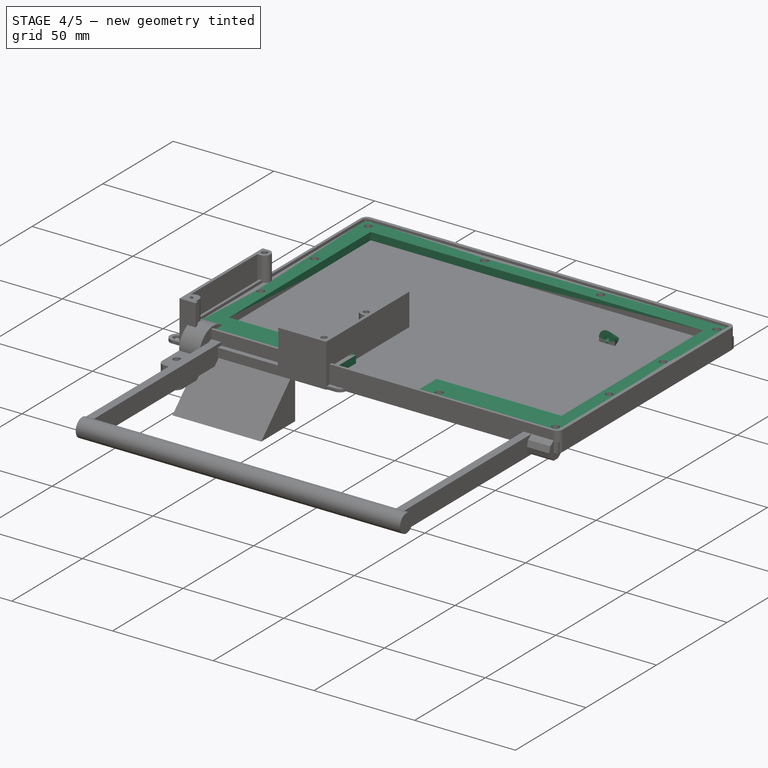
[diagram: stage 4 of 5 — iso view after this stage's code; geometry added in this stage tinted green]
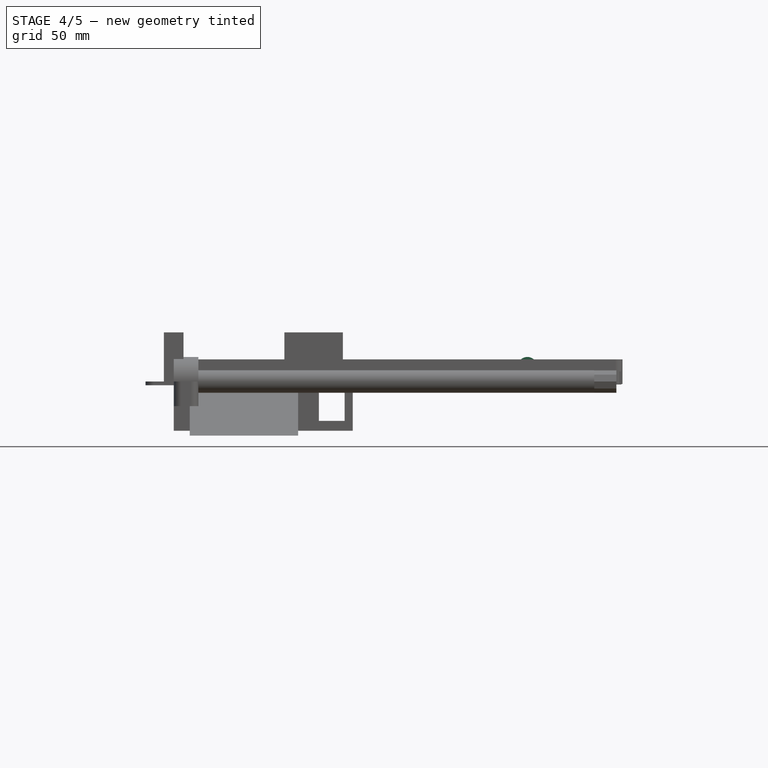
[diagram: stage 4 of 5 — front view after this stage's code; geometry added in this stage tinted green]
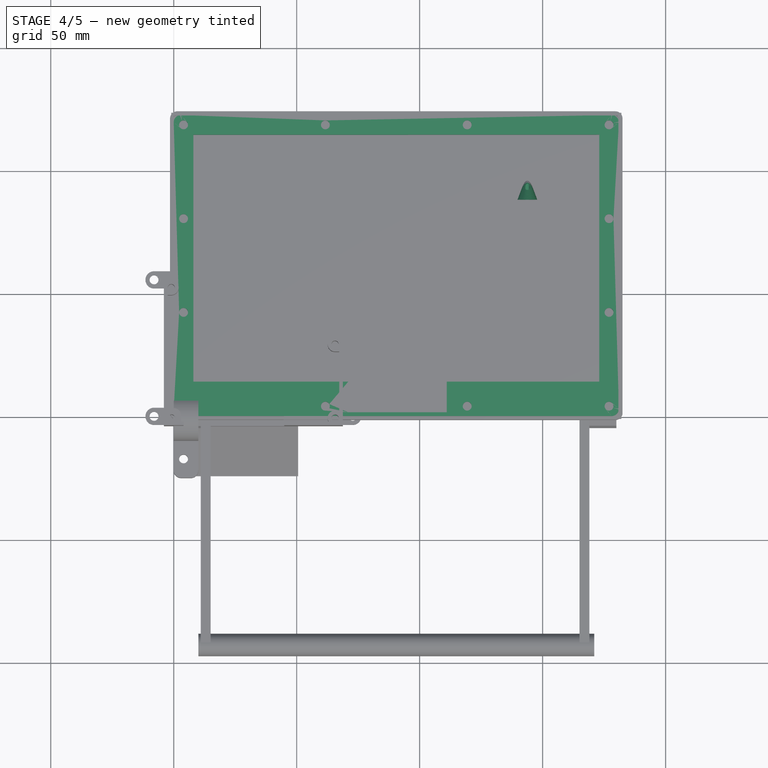
[diagram: stage 4 of 5 — top view after this stage's code; geometry added in this stage tinted green]
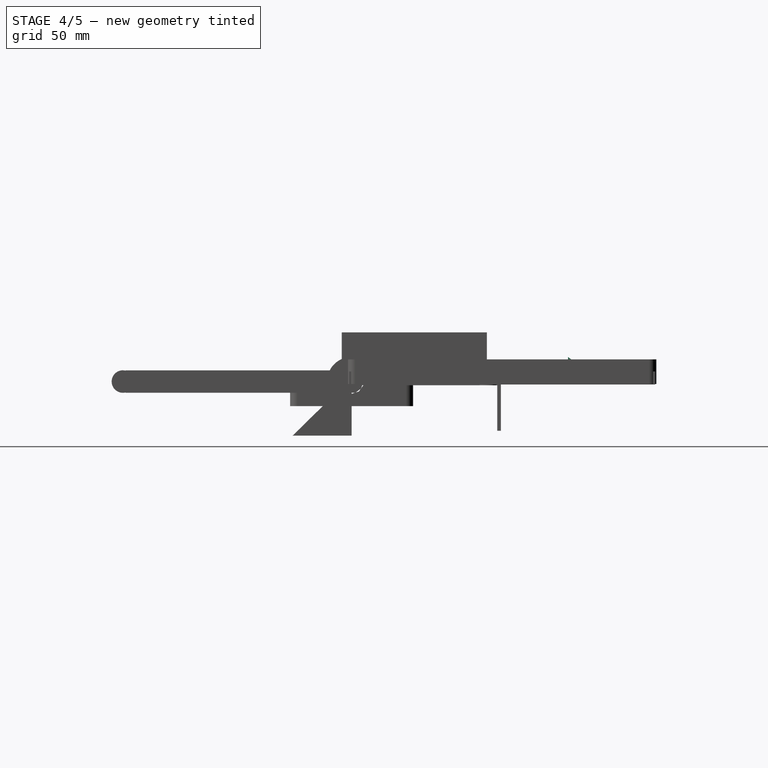
[diagram: stage 4 of 5 — right view after this stage's code; geometry added in this stage tinted green]
FEATURE [Part::Box] Box012  label="Cube004"
  AttacherType = Attacher::AttachEngine3D
  Height = 3
  Length = 5.5
  Placement = pos=(63.3,-4,0) rot=(0,0,1;0rad)
  Width = 59
  expr: Placement.Base.y = -p.pcb_pad
  expr: Placement.Base.x = p.pcb_length - p.wall
  expr: Height = p.pcb_under
  expr: Width = p.pcb_width + p.pcb_pad
  expr: Length = p.pcb_pad + p.wall
FEATURE [Part::Box] Box013  label="Cube005"
  AttacherType = Attacher::AttachEngine3D
  Height = 3
  Length = 68.8
  Placement = pos=(-1.5,-4,0) rot=(0,0,1;0rad)
  Width = 5.5
  expr: Placement.Base.y = -p.pcb_pad
  expr: Placement.Base.x = -p.wall
  expr: Height = p.pcb_under
  expr: Width = p.wall + p.pcb_pad
  expr: Length = p.pcb_pad + p.pcb_length
FEATURE [App::Part] Part002  label="pcb_holder"
  Group = -> [Body003,Box003,Box004,Box005,Box006,Box007,Cylinder,Box008,Fusion,Fusion001,Cylinder001,Cut,Part__Mirroring,Compound,Box011,Box012,Box013]
  Origin = -> Origin005
  Placement = pos=(67,33,13) rot=(0,0,1;0rad)
FEATURE [Sketcher::SketchObject] Sketch006
  Placement = pos=(0,8,0) rot=(0,0.707107,0.707107;3.14159rad)
  sketch-geometry (5):
    g0: LineSegment StartX=-4 StartY=0 StartZ=0 EndX=4 EndY=0 EndZ=0
    g1: LineSegment StartX=4 StartY=0 StartZ=0 EndX=4 EndY=4 EndZ=0
    g2: LineSegment StartX=-4 StartY=0 StartZ=0 EndX=-4 EndY=4 EndZ=0
    g3: ArcOfCircle CenterX=-1e-16 CenterY=4 CenterZ=0 NormalX=0 NormalY=0 NormalZ=1 AngleXU=0 Radius=4 StartAngle=0 EndAngle=3.14159
    g4: GeomPoint X=0 Y=8 Z=0
  constraints (12):
    c: PointOnObject(g0,g-1)
    c: Horizontal(g0)
    c: Coincident(g1,g0)
    c: Coincident(g2,g0)
    c: Vertical(g2)
    c: Symmetric(g2,g1,g-2)
    c: PointOnObject(g4,g3)
    c: Tangent(g3,g2) = 1.5708
    c: Tangent(g3,g1) = -1.5708
    c: DistanceX(g-1,g4) = 0
    c: DistanceX(g0,g0) = 8
    c: DistanceY(g-1,g4) = 8
FEATURE [Part::Cylinder] Cylinder002
  Angle = 360
  AttacherType = Attacher::AttachEngine3D
  Height = 20
  Placement = pos=(0,13,4) rot=(1,0,0;1.5708rad)
  Radius = 1
FEATURE [Sketcher::SketchObject] Sketch010  label="Sketch6_small"
  Placement = pos=(0,0,0) rot=(0,0.707107,0.707107;3.14159rad)
  sketch-geometry (4):
    g0: LineSegment StartX=-0.3 StartY=0 StartZ=0 EndX=0.3 EndY=0 EndZ=0
    g1: LineSegment StartX=0.3 StartY=0 StartZ=0 EndX=0.3 EndY=0.1 EndZ=0
    g2: LineSegment StartX=-0.3 StartY=0 StartZ=0 EndX=-0.3 EndY=0.1 EndZ=0
    g3: ArcOfCircle CenterX=0 CenterY=0.1 CenterZ=0 NormalX=0 NormalY=0 NormalZ=1 AngleXU=0 Radius=0.3 StartAngle=0 EndAngle=3.14159
  constraints (10):
    c: PointOnObject(g0,g-1)
    c: Coincident(g1,g0)
    c: Vertical(g1)
    c: Coincident(g2,g0)
    c: Equal(g2,g1)
    c: Symmetric(g2,g1,g-2)
    c: Tangent(g3,g2) = 1.5708
    c: Tangent(g3,g1) = -1.5708
    c: DistanceY(g1,g1) = 0.1
    c: Radius(g3) = 0.3
FEATURE [Sketcher::SketchObject] CopySketch006
  Placement = pos=(0,10,0) rot=(0,0.707107,0.707107;3.14159rad)
  sketch-geometry (5):
    g0: LineSegment StartX=-4 StartY=0 StartZ=0 EndX=4 EndY=0 EndZ=0
    g1: LineSegment StartX=4 StartY=0 StartZ=0 EndX=4 EndY=4 EndZ=0
    g2: LineSegment StartX=-4 StartY=0 StartZ=0 EndX=-4 EndY=4 EndZ=0
    g3: ArcOfCircle CenterX=-1e-16 CenterY=4 CenterZ=0 NormalX=0 NormalY=0 NormalZ=1 AngleXU=0 Radius=4 StartAngle=0 EndAngle=3.14159
    g4: GeomPoint X=0 Y=8 Z=0
  constraints (12):
    c: PointOnObject(g0,g-1)
    c: Horizontal(g0)
    c: Coincident(g1,g0)
    c: Coincident(g2,g0)
    c: Vertical(g2)
    c: Symmetric(g2,g1,g-2)
    c: PointOnObject(g4,g3)
    c: Tangent(g3,g2) = 1.5708
    c: Tangent(g3,g1) = -1.5708
    c: DistanceX(g-1,g4) = 0
    c: DistanceX(g0,g0) = 8
    c: DistanceY(g-1,g4) = 8
FEATURE [Part::Box] Box014  label="display cube"
  AttacherType = Attacher::AttachEngine3D
  Height = 10
  Length = 165
  Placement = pos=(0,0,1.5) rot=(0,0,1;0rad)
  Width = 100.4
  expr: Placement.Base.z = p.wall
  expr: Width = p.display_width
  expr: Length = p.display_length
FEATURE [Part::Box] Box015  label="display face internal cube"
  AttacherType = Attacher::AttachEngine3D
  Height = 10
  Length = 156.5
  Placement = pos=(5.6,8.3,-4) rot=(0,0,1;0rad)
  Width = 88.5
FEATURE [Part::Box] Box016  label="display box cube"
  AttacherType = Attacher::AttachEngine3D
  Height = 7.8
  Length = 181
  Width = 122.4
  expr: Height = p.wall + p.display_height + p.display_back_space
  expr: Width = p.display_width + p.display_top_margin + p.display_extra_bottom
  expr: Length = p.display_length + 2 * p.display_side_margin
FEATURE [Part::Box] Box017  label="bus extraction cube"
  AttacherType = Attacher::AttachEngine3D
  Height = 10
  Length = 40
  Placement = pos=(63,-12.5,1.5) rot=(0,0,1;0rad)
  Width = 50
  expr: Placement.Base.y = -p.display_extra_bottom + p.wall
  expr: Placement.Base.z = p.wall
FEATURE [Part::MultiFuse] Fusion003
  Placement = pos=(8,14,0) rot=(0,0,1;0rad)
  Shapes = -> [Box014,Box015,Box017]
  expr: Placement.Base.y = p.display_extra_bottom
  expr: Placement.Base.x = p.display_side_margin
FEATURE [Part::Box] Box018  label="Cube"
  AttacherType = Attacher::AttachEngine3D
  Height = 3.3
  Length = 181
  Width = 122.4
  expr: Width = p.display_width + p.display_top_margin + p.display_extra_bottom
  expr: Length = p.display_length + 2 * p.display_side_margin
FEATURE [Part::Fillet] Fillet001
  Base = -> Box018
  Edges = 4 edges r=3: [Edge1,Edge3,Edge5,Edge7]
FEATURE [Part::MultiFuse] Fusion005  label="side holes fusion"
  Shapes = -> [Array003,Array005]
FEATURE [PartDesign::FeatureBase] Clone003
  BaseFeature = -> Fusion005
FEATURE [PartDesign::Body] Body011  label="side holes clone 2"
  BaseFeature = -> Fusion005
  Group = -> [Clone003]
  Origin = -> Origin018
  Tip = -> Clone003
FEATURE [Part::MultiFuse] Fusion004
  Shapes = -> [Fusion003,Body011]
FEATURE [Part::Cut] Cut002  label="display holder cut"
  Base = -> Box016
  Tool = -> Fusion004
FEATURE [Part::Compound] Compound001  label="display holder v2 compound"
  Links = -> [Cut002]
FEATURE [Part::Fillet] Fillet
  Base = -> Compound001
  Edges = 8 edges: [Edge1 r=3,Edge3 r=3,Edge4 r=1,Edge5 r=1,Edge6 r=3,Edge30 r=1,Edge31 r=3,Edge32 r=1]
FEATURE [App::Part] Part005  label="display holder v2"
  Group = -> [Box014,Box015,Fusion003,Box016,Cut002,Cylinder003,Box017,Fusion004,Compound001,Fillet]
  Origin = -> Origin014
FEATURE [Part::Box] Box019  label="bus extraction cut cube"
  AttacherType = Attacher::AttachEngine3D
  Height = 10
  Length = 40
  Placement = pos=(71,6,-2) rot=(0,0,1;0rad)
  Width = 8
FEATURE [PartDesign::AdditiveLoft] AdditiveLoft
  Closed = false
  Placement = pos=(0,10,0) rot=(0,0.707107,0.707107;3.14159rad)
  Profile = -> CopySketch006
  Ruled = false
  Sections = -> [Sketch010]
FEATURE [Part::Cut] Cut001  label="screw hole"
  Base = -> AdditiveLoft
  Tool = -> Cylinder002
FEATURE [PartDesign::FeatureBase] Clone
  BaseFeature = -> Cut001
FEATURE [PartDesign::Body] Body008  label="screw hole clone"
  BaseFeature = -> Cut001
  Group = -> [Clone]
  Origin = -> Origin013
  Placement = pos=(55,98,2) rot=(0,0,1;3.14159rad)
  Tip = -> Clone
FEATURE [Part::Mirroring] Part__Mirroring001  label="screw hole clone (Mirror #2)"
  Base = (99.4,0,0)
  Normal = (1,0,0)
  Source = -> Body008
FEATURE [Part::Cylinder] Cylinder004
  Angle = 360
  AttacherType = Attacher::AttachEngine3D
  Height = 20
  Placement = pos=(59,33,-7) rot=(0,0,1;0rad)
  Radius = 1.8
FEATURE [Part::FeaturePython] Array007  # Draft array (typed FeaturePython)
  Angle = 360
  ArrayType = 0
  Axis = (0,0,1)
  Base = -> Cylinder004
  Center = (0,0,0)
  Fuse = false
  IntervalAxis = (0,0,0)
  IntervalX = (81,0,0)
  IntervalY = (0,55.5,0)
  IntervalZ = (0,0,1)
  NumberPolar = 1
  NumberX = 2
  NumberY = 2
  NumberZ = 1
FEATURE [PartDesign::Body] Body024  label="side wider holes clone"
  BaseFeature = -> Fusion009
  Group = -> [Clone010]
  Origin = -> Origin036
  Placement = pos=(0,0,-8) rot=(0,0,1;0rad)
  Tip = -> Clone010
FEATURE [Part::MultiFuse] Fusion006
  Shapes = -> [Box019,Array007,Body024]
FEATURE [Part::Cut] Cut003  label="display back cut"
  Base = -> Fillet001
  Tool = -> Fusion006
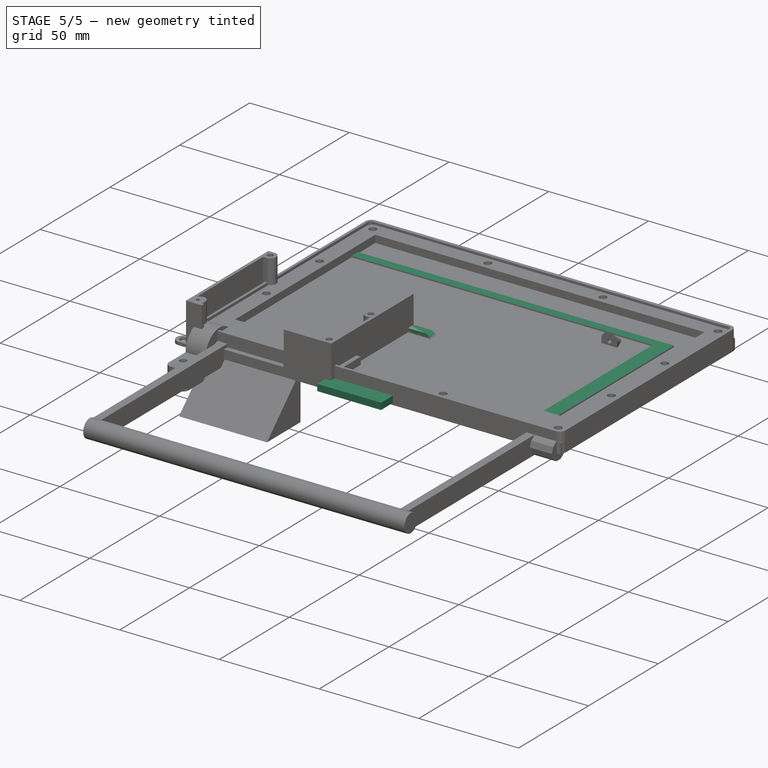
[diagram: stage 5 of 5 — iso view after this stage's code; geometry added in this stage tinted green]
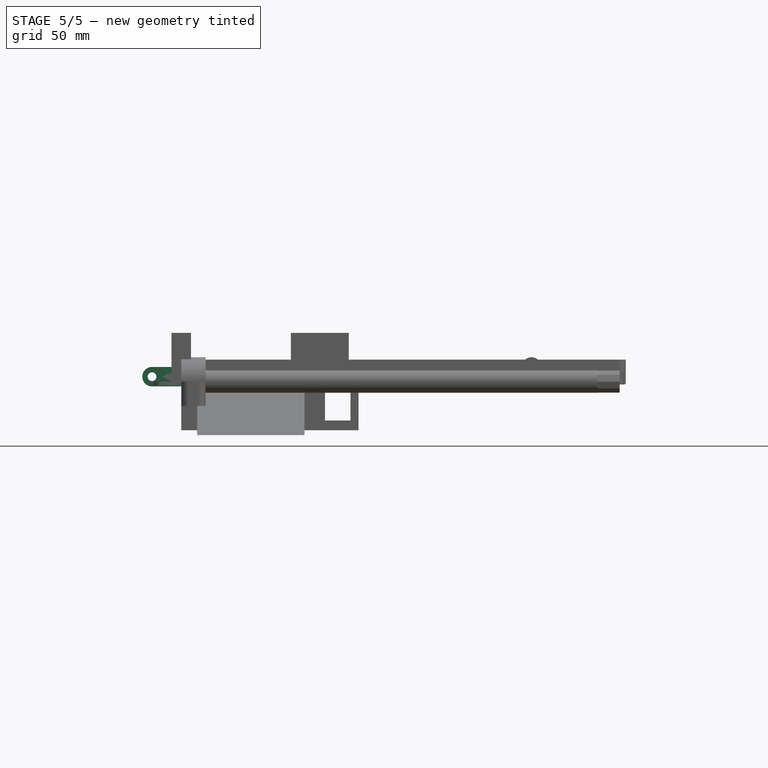
[diagram: stage 5 of 5 — front view after this stage's code; geometry added in this stage tinted green]
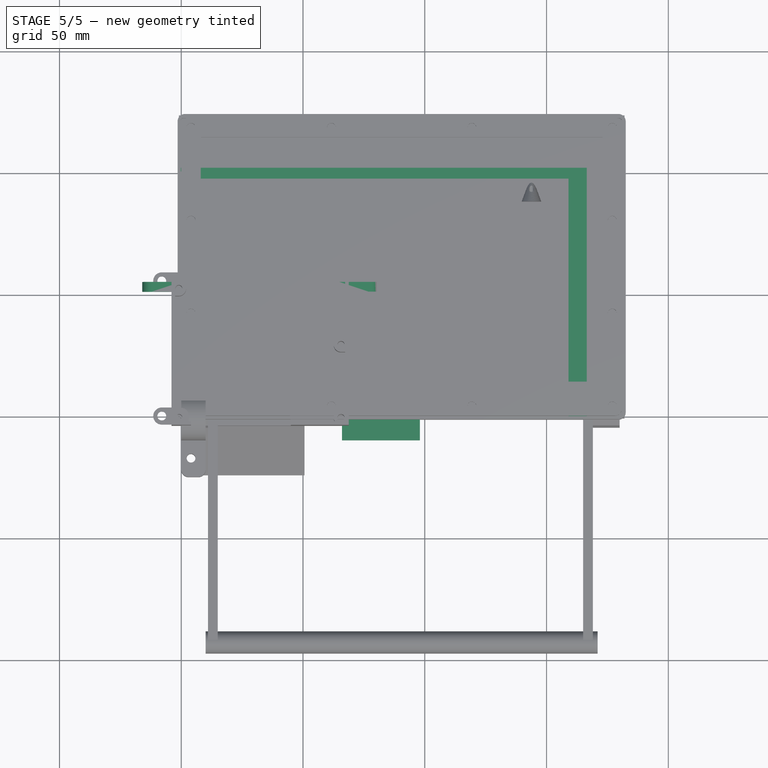
[diagram: stage 5 of 5 — top view after this stage's code; geometry added in this stage tinted green]
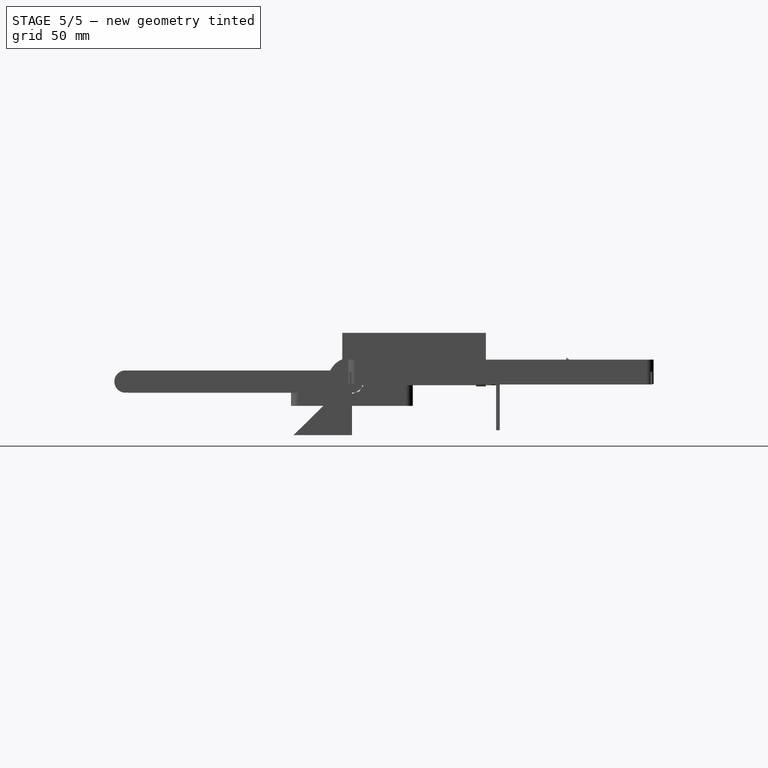
[diagram: stage 5 of 5 — right view after this stage's code; geometry added in this stage tinted green]
FEATURE [Part::Box] Box  label="display mockup"
  AttacherType = Attacher::AttachEngine3D
  Height = 3.3
  Length = 165
  Width = 100.4
  expr: Height = p.display_height
  expr: Width = p.display_width
  expr: Length = p.display_length
FEATURE [Part::Box] Box001  label="pcb mockup"
  AttacherType = Attacher::AttachEngine3D
  Height = 2
  Length = 64.8
  Width = 55
  expr: Height = p.pcb_height
  expr: Width = p.pcb_width
  expr: Length = p.pcb_length
FEATURE [Sketcher::SketchObject] Sketch
  AttachmentOffset = pos=(0,0,-3.3) rot=(0,0,1;0rad)
  expr: Constraints[9] = p.wall * 2 + p.display_width + p.display_extra_bottom
  expr: Constraints[11] = p.wall + p.display_back_pad
  expr: Constraints[7] = p.wall
  expr: Constraints[10] = p.wall + p.display_back_pad
  expr: Constraints[6] = p.wall
  expr: Constraints[8] = p.wall * 2 + p.display_length
  sketch-geometry (20):
    g0: LineSegment StartX=-1.5 StartY=115.9 StartZ=0 EndX=166.5 EndY=115.9 EndZ=0
    g1: LineSegment StartX=166.5 StartY=115.9 StartZ=0 EndX=166.5 EndY=-1.5 EndZ=0
    g2: LineSegment StartX=-1.5 StartY=-1.5 StartZ=0 EndX=-1.5 EndY=115.9 EndZ=0
    g3: LineSegment StartX=8 StartY=106.4 StartZ=0 EndX=49.5 EndY=106.4 EndZ=0
    g4: GeomPoint X=8 Y=-1.5 Z=0
    g5: GeomPoint X=157 Y=-1.5 Z=0
    g6: LineSegment StartX=-1.5 StartY=-1.5 StartZ=0 EndX=8 EndY=-1.5 EndZ=0
    g7: LineSegment StartX=157 StartY=-1.5 StartZ=0 EndX=166.5 EndY=-1.5 EndZ=0
    g8: LineSegment StartX=49.5 StartY=106.4 StartZ=0 EndX=49.5 EndY=16.4 EndZ=0
    g9: LineSegment StartX=61.5 StartY=106.4 StartZ=0 EndX=61.5 EndY=16.4 EndZ=0
    g10: LineSegment StartX=149.5 StartY=106.4 StartZ=0 EndX=149.5 EndY=16.4 EndZ=0
    g11: LineSegment StartX=137.5 StartY=16.4 StartZ=0 EndX=149.5 EndY=16.4 EndZ=0
    g12: LineSegment StartX=61.5 StartY=16.4 StartZ=0 EndX=49.5 EndY=16.4 EndZ=0
    g13: LineSegment StartX=61.5 StartY=106.4 StartZ=0 EndX=137.5 EndY=106.4 EndZ=0
    g14: LineSegment StartX=149.5 StartY=106.4 StartZ=0 EndX=157 EndY=106.4 EndZ=0
    g15: GeomPoint X=49.5 Y=16.4 Z=0
    g16: GeomPoint X=49.5 Y=16.4 Z=0
    g17: LineSegment StartX=137.5 StartY=106.4 StartZ=0 EndX=137.5 EndY=16.4 EndZ=0
    g18: LineSegment StartX=8 StartY=106.4 StartZ=0 EndX=8 EndY=-1.5 EndZ=0
    g19: LineSegment StartX=157 StartY=-1.5 StartZ=0 EndX=157 EndY=106.4 EndZ=0
  constraints (53):
    c: Coincident(g0,g1)
    c: Coincident(g2,g0)
    c: Horizontal(g0)
    c: Vertical(g1)
    c: Vertical(g2)
    c: Horizontal(g3)
    c: DistanceY(g2,g-1) = 1.5
    c: DistanceX(g2,g-1) = 1.5
    c: DistanceX(g2,g1) = 168
    c: DistanceY(g1,g1) = 117.4
    c: DistanceY(g3,g0) = 9.5
    c: DistanceX(g14,g0) = 9.5
    c: Coincident(g6,g2)
    c: Horizontal(g6)
    c: Coincident(g7,g1)
    c: Horizontal(g7)
    c: Vertical(g8)
    c: Vertical(g9)
    c: Vertical(g10)
    c: Coincident(g11,g10)
    c: Coincident(g12,g9)
    c: Horizontal(g12)
    c: Equal(g8,g9)
    c: DistanceX(g12,g12) = 12
    c: Equal(g12,g11)
    c: DistanceX(g9,g10) = 88
    c: DistanceX(g0,g12) = 51
    c: Coincident(g13,g9)
    c: Coincident(g16,g15)
    c: Equal(g2,g1)
    c: Coincident(g15,g8)
    c: Coincident(g8,g12)
    c: Coincident(g17,g13)
    c: Vertical(g17)
    c: Coincident(g17,g11)
    c: Horizontal(g11)
    c: Equal(g12,g11)
    c: Equal(g17,g10)
    c: Coincident(g18,g3)
    c: Coincident(g18,g4)
    c: Vertical(g18)
    c: Coincident(g19,g14)
    c: Vertical(g19)
    c: Horizontal(g14)
    c: Equal(g6,g7)
    c: DistanceY(g17,g17) = 90
    c: Coincident(g10,g14)
    c: Coincident(g5,g19)
    c: Horizontal(g13)
    c: Coincident(g4,g6)
    c: Coincident(g5,g7)
    c: Coincident(g8,g3)
    c: Equal(g9,g17)
FEATURE [Part::Part2DObjectPython] ShapeString  label="back string"  # Draft 2D object (typed FeaturePython)
  AttachmentOffset = pos=(90,-52,0) rot=(0,0,1;3.14159rad)
  FontFile = <path>
  MapMode = 5
  Placement = pos=(90,52,0) rot=(0,-1,0;3.14159rad)
  Size = 10
  String = back
  Support = -> [Box]
  Tracking = 0
FEATURE [Part::Part2DObjectPython] ShapeString001  label="face string"  # Draft 2D object (typed FeaturePython)
  AttachmentOffset = pos=(62,39,0) rot=(0,0,1;0rad)
  FontFile = <path>
  MapMode = 5
  Placement = pos=(62,39,3.3) rot=(0,0,1;0rad)
  Size = 10
  String = face
  Support = -> [Box]
  Tracking = 0
FEATURE [Part::Box] Box002  label="bus cube"
  AttacherType = Attacher::AttachEngine3D
  Height = 3.3
  Length = 32
  Placement = pos=(66,-10,0) rot=(0,0,1;0rad)
  Width = 10
FEATURE [App::Part] Part001  label="display mockup part"
  Group = -> [Box,ShapeString,ShapeString001,Box002]
  Origin = -> Origin002
  Placement = pos=(173,14,9) rot=(0,1,0;3.14159rad)
FEATURE [Spreadsheet::Sheet] Spreadsheet  label="p"
  cells = A1=display_length; B1(display_length)=165; A2=display_width; B2(display_width)=100.4; A3=display_height; B3(display_height)=3.3; A4=display_side_margin; B4(display_side_margin)=8; A5=display_top_margin; B5(display_top_margin)=8; A6=display_back_pad; B6(display_back_pad)=8; A7=display_extra_bottom; B7(display_extra_bottom)=14; A8=display_back_space; B8(display_back_space)=3; A9=pcb_length; B9(pcb_length)=64.8; A10=pcb_width; B10(pcb_width)=55; A11=pcb_height; B11(pcb_height)=2; A12=pcb_pad; B12(pcb_pad)=4; A13=pcb_under; B13(pcb_under)=3; A14=pcb_cover_height; B14(pcb_cover_height)=20; A15=wall; B15(wall)=1.5
FEATURE [Sketcher::SketchObject] Sketch001
  Placement = pos=(0,0,3.3) rot=(0,0,1;0rad)
  expr: Constraints[25] = p.wall + 3
  expr: Constraints[23] = p.wall + 2.4
  expr: Placement.Base.z = p.display_height
  expr: Constraints[16] = p.wall + 6
  expr: Constraints[12] = p.wall * 2 + p.display_length
  expr: Constraints[11] = p.wall
  expr: Constraints[13] = p.wall * 2 + p.display_width
  expr: Constraints[10] = p.wall
  sketch-geometry (10):
    g0: LineSegment StartX=-1.5 StartY=101.9 StartZ=0 EndX=166.5 EndY=101.9 EndZ=0
    g1: LineSegment StartX=166.5 StartY=101.9 StartZ=0 EndX=166.5 EndY=-1.5 EndZ=0
    g2: LineSegment StartX=-1.5 StartY=-1.5 StartZ=0 EndX=-1.5 EndY=101.9 EndZ=0
    g3: LineSegment StartX=2.4 StartY=97.4 StartZ=0 EndX=159 EndY=97.4 EndZ=0
    g4: LineSegment StartX=159 StartY=97.4 StartZ=0 EndX=159 EndY=-1.5 EndZ=0
    g5: LineSegment StartX=2.4 StartY=-1.5 StartZ=0 EndX=2.4 EndY=97.4 EndZ=0
    g6: GeomPoint X=2.4 Y=-1.5 Z=0
    g7: GeomPoint X=159 Y=-1.5 Z=0
    g8: LineSegment StartX=-1.5 StartY=-1.5 StartZ=0 EndX=2.4 EndY=-1.5 EndZ=0
    g9: LineSegment StartX=159 StartY=-1.5 StartZ=0 EndX=166.5 EndY=-1.5 EndZ=0
  constraints (26):
    c: Coincident(g0,g1)
    c: Coincident(g2,g0)
    c: Horizontal(g0)
    c: Vertical(g1)
    c: Vertical(g2)
    c: Coincident(g3,g4)
    c: Coincident(g5,g3)
    c: Horizontal(g3)
    c: Vertical(g4)
    c: Vertical(g5)
    c: DistanceY(g2,g-1) = 1.5
    c: DistanceX(g2,g-1) = 1.5
    c: DistanceX(g2,g1) = 168
    c: DistanceY(g1,g1) = 103.4
    c: Coincident(g5,g6)
    c: Coincident(g4,g7)
    c: DistanceX(g3,g0) = 7.5
    c: Coincident(g8,g2)
    c: Coincident(g8,g5)
    c: Horizontal(g8)
    c: Coincident(g9,g4)
    c: Coincident(g9,g1)
    c: Horizontal(g9)
    c: DistanceX(g0,g3) = 3.9
    c: Equal(g4,g5)
    c: DistanceY(g3,g0) = 4.5
FEATURE [Sketcher::SketchObject] Sketch002
  AttachmentOffset = pos=(0,0,-3.3) rot=(0,0,1;0rad)
  expr: Constraints[24] = p.wall
  expr: Constraints[17] = p.wall
  expr: Constraints[12] = p.wall * 2 + p.display_length
  expr: Constraints[16] = p.wall
  expr: Constraints[11] = p.wall
  expr: Constraints[13] = p.wall * 2 + p.display_width
  expr: Constraints[10] = p.wall
  sketch-geometry (10):
    g0: LineSegment StartX=-1.5 StartY=101.9 StartZ=0 EndX=166.5 EndY=101.9 EndZ=0
    g1: LineSegment StartX=166.5 StartY=101.9 StartZ=0 EndX=166.5 EndY=-1.5 EndZ=0
    g2: LineSegment StartX=-1.5 StartY=-1.5 StartZ=0 EndX=-1.5 EndY=101.9 EndZ=0
    g3: LineSegment StartX=0 StartY=100.4 StartZ=0 EndX=165 EndY=100.4 EndZ=0
    g4: LineSegment StartX=165 StartY=100.4 StartZ=0 EndX=165 EndY=-1.5 EndZ=0
    g5: LineSegment StartX=0 StartY=-1.5 StartZ=0 EndX=0 EndY=100.4 EndZ=0
    g6: GeomPoint X=0 Y=-1.5 Z=0
    g7: GeomPoint X=165 Y=-1.5 Z=0
    g8: LineSegment StartX=-1.5 StartY=-1.5 StartZ=0 EndX=0 EndY=-1.5 EndZ=0
    g9: LineSegment StartX=165 StartY=-1.5 StartZ=0 EndX=166.5 EndY=-1.5 EndZ=0
  constraints (26):
    c: Coincident(g0,g1)
    c: Coincident(g2,g0)
    c: Horizontal(g0)
    c: Vertical(g1)
    c: Vertical(g2)
    c: Coincident(g3,g4)
    c: Coincident(g5,g3)
    c: Horizontal(g3)
    c: Vertical(g4)
    c: Vertical(g5)
    c: DistanceY(g2,g-1) = 1.5
    c: DistanceX(g2,g-1) = 1.5
    c: DistanceX(g2,g1) = 168
    c: DistanceY(g1,g1) = 103.4
    c: Coincident(g5,g6)
    c: Coincident(g4,g7)
    c: DistanceY(g3,g0) = 1.5
    c: DistanceX(g3,g0) = 1.5
    c: Coincident(g8,g2)
    c: Coincident(g8,g5)
    c: Horizontal(g8)
    c: Coincident(g9,g4)
    c: Coincident(g9,g1)
    c: Horizontal(g9)
    c: DistanceX(g0,g3) = 1.5
    c: Equal(g4,g5)
FEATURE [PartDesign::Pad] Pad001
  Length = 1.5
  Length2 = 100
  Placement = pos=(0,0,3.3) rot=(0,0,1;0rad)
  Profile = -> Sketch001
  Type = 0
FEATURE [PartDesign::Body] Body001  label="face body"
  Group = -> [Sketch001,Pad001]
  Origin = -> Origin003
  Tip = -> Pad001
FEATURE [PartDesign::Pad] Pad002
  Length = 3.3
  Length2 = 100
  Profile = -> Sketch002
  Type = 0
  expr: Length = p.display_height
FEATURE [PartDesign::Body] Body002  label="frame body"
  Group = -> [Sketch002,Pad002]
  Origin = -> Origin004
  Tip = -> Pad002
FEATURE [PartDesign::Pad] Pad
  Length = 1.5
  Length2 = 100
  Profile = -> Sketch
  Type = 0
  expr: Length = p.wall
FEATURE [PartDesign::Body] Body  label="back body"
  Group = -> [Sketch,Pad]
  Origin = -> Origin001
  Tip = -> Pad
FEATURE [Sketcher::SketchObject] Sketch003
  MapMode = 5
  Support = -> [XY_Plane006]
  expr: Constraints[21] = p.wall + p.pcb_pad
  expr: Constraints[20] = p.wall + p.pcb_pad
  expr: Constraints[23] = p.wall + p.pcb_pad
  expr: Constraints[19] = 2 * p.pcb_pad + p.pcb_width
  expr: Constraints[18] = p.pcb_pad
  expr: Constraints[22] = p.wall + p.pcb_pad
  expr: Constraints[17] = p.pcb_pad
  expr: Constraints[16] = p.pcb_length + 2 * p.pcb_pad
  sketch-geometry (8):
    g0: LineSegment StartX=-4 StartY=59 StartZ=0 EndX=68.8 EndY=59 EndZ=0
    g1: LineSegment StartX=68.8 StartY=59 StartZ=0 EndX=68.8 EndY=-4 EndZ=0
    g2: LineSegment StartX=68.8 StartY=-4 StartZ=0 EndX=-4 EndY=-4 EndZ=0
    g3: LineSegment StartX=-4 StartY=-4 StartZ=0 EndX=-4 EndY=59 EndZ=0
    g4: LineSegment StartX=1.5 StartY=53.5 StartZ=0 EndX=63.3 EndY=53.5 EndZ=0
    g5: LineSegment StartX=63.3 StartY=53.5 StartZ=0 EndX=63.3 EndY=1.5 EndZ=0
    g6: LineSegment StartX=63.3 StartY=1.5 StartZ=0 EndX=1.5 EndY=1.5 EndZ=0
    g7: LineSegment StartX=1.5 StartY=1.5 StartZ=0 EndX=1.5 EndY=53.5 EndZ=0
  constraints (24):
    c: Coincident(g0,g1)
    c: Coincident(g1,g2)
    c: Coincident(g2,g3)
    c: Coincident(g3,g0)
    c: Horizontal(g0)
    c: Horizontal(g2)
    c: Vertical(g1)
    c: Vertical(g3)
    c: Coincident(g4,g5)
    c: Coincident(g5,g6)
    c: Coincident(g6,g7)
    c: Coincident(g7,g4)
    c: Horizontal(g4)
    c: Horizontal(g6)
    c: Vertical(g5)
    c: Vertical(g7)
    c: DistanceX(g0,g0) = 72.8
    c: DistanceX(g2,g-1) = 4
    c: DistanceY(g2,g-1) = 4
    c: DistanceY(g3,g3) = 63
    c: DistanceX(g2,g6) = 5.5
    c: DistanceY(g2,g6) = 5.5
    c: DistanceX(g5,g1) = 5.5
    c: DistanceY(g4,g0) = 5.5
FEATURE [Part::Part2DObjectPython] ShapeString002  label="bottom string001"  # Draft 2D object (typed FeaturePython)
  AttachmentOffset = pos=(90,-52,0) rot=(0,0,1;3.14159rad)
  FontFile = <path>
  MapMode = 5
  Placement = pos=(57,26,0) rot=(0,1,0;3.14159rad)
  Size = 10
  String = bottom
  Tracking = 0
FEATURE [Part::Part2DObjectPython] ShapeString003  label="top string002"  # Draft 2D object (typed FeaturePython)
  AttachmentOffset = pos=(90,-52,0) rot=(0,0,1;3.14159rad)
  FontFile = <path>
  MapMode = 5
  Placement = pos=(25,26,1.5) rot=(0,1,0;0rad)
  Size = 10
  String = top
  Tracking = 0
FEATURE [App::Part] Part003  label="pcb mockup part"
  Group = -> [Box001,ShapeString002,ShapeString003]
  Origin = -> Origin007
FEATURE [PartDesign::Pad] Pad003
  Length = 1.5
  Length2 = 100
  Profile = -> Sketch003
  Reversed = true
  Type = 0
  expr: Length = p.wall
FEATURE [PartDesign::Body] Body003  label="bottom body"
  Group = -> [Sketch003,Pad003]
  Origin = -> Origin006
  Tip = -> Pad003
FEATURE [Part::Box] Box003  label="top cover"
  AttacherType = Attacher::AttachEngine3D
  Height = 1.5
  Length = 5
  Placement = pos=(-4,0,2) rot=(0,0,1;0rad)
  Width = 55
  expr: Placement.Base.x = -p.pcb_pad
  expr: Width = p.pcb_width
  expr: Length = p.pcb_pad + 1
  expr: Placement.Base.z = p.pcb_height
  expr: Height = p.wall
FEATURE [Part::Box] Box004  label="middle_pad"
  AttacherType = Attacher::AttachEngine3D
  Height = 2
  Length = 4
  Placement = pos=(-4,0,0) rot=(0,0,1;0rad)
  Width = 55
  expr: Placement.Base.x = -p.pcb_pad
  expr: Width = p.pcb_width
  expr: Length = p.pcb_pad
  expr: Height = p.pcb_height
FEATURE [Part::Box] Box005  label="middle_pad001"
  AttacherType = Attacher::AttachEngine3D
  Height = 2
  Length = 4
  Placement = pos=(64.8,0,0) rot=(0,0,1;0rad)
  Width = 55
  expr: Placement.Base.x = p.pcb_length
  expr: Width = p.pcb_width
  expr: Length = p.pcb_pad
  expr: Height = p.pcb_height
FEATURE [Part::Box] Box006  label="top cover001"
  AttacherType = Attacher::AttachEngine3D
  Height = 1.5
  Length = 5
  Placement = pos=(63.8,0,2) rot=(0,0,1;0rad)
  Width = 30
  expr: Placement.Base.x = p.pcb_length - 1
  expr: Length = p.pcb_pad + 1
  expr: Placement.Base.z = p.pcb_height
  expr: Height = p.wall
FEATURE [Part::Box] Box007  label="middle_pad002"
  AttacherType = Attacher::AttachEngine3D
  Height = 3.5
  Length = 24
  Placement = pos=(44.8,-4,0) rot=(0,0,1;0rad)
  Width = 4
  expr: Placement.Base.y = -p.pcb_pad
  expr: Width = p.pcb_pad
  expr: Height = p.pcb_height + p.wall
FEATURE [Part::Cylinder] Cylinder
  Angle = 360
  AttacherType = Attacher::AttachEngine3D
  Height = 4
  Placement = pos=(0,0,4) rot=(-1,0,0;1.5708rad)
  Radius = 4
FEATURE [Part::Box] Box008  label="Cube001"
  AttacherType = Attacher::AttachEngine3D
  Height = 8
  Length = 12
  Width = 4
FEATURE [Part::MultiFuse] Fusion
  Shapes = -> [Box008,Cylinder]
FEATURE [Part::Cylinder] Cylinder001
  Angle = 360
  AttacherType = Attacher::AttachEngine3D
  Height = 30
  Placement = pos=(0,0,4) rot=(-1,0,0;1.5708rad)
  Radius = 1.8
FEATURE [Part::Cut] Cut  label="ear"
  Base = -> Fusion
  Placement = pos=(-12,51,-2) rot=(0,0,1;0rad)
  Tool = -> Cylinder001
FEATURE [Part::Mirroring] Part__Mirroring  label="ear (Mirror #1)"
  Base = (32.4,0,0)
  Normal = (1,0,0)
  Source = -> Cut
FEATURE [Part::Box] Box009  label="Cube002"
  AttacherType = Attacher::AttachEngine3D
  Height = 1.5
  Length = 165
  Placement = pos=(0,7,0) rot=(0,0,1;0rad)
  Width = 6
  expr: Height = p.wall
  expr: Length = p.display_length
FEATURE [Part::FeaturePython] Array  label="horiz lines array"  # Draft array (typed FeaturePython)
  Angle = 360
  ArrayType = 0
  Axis = (0,0,1)
  Base = -> Box009
  Center = (0,0,0)
  Fuse = false
  IntervalAxis = (0,0,0)
  IntervalX = (1,0,0)
  IntervalY = (0,18,0)
  IntervalZ = (0,0,1)
  NumberPolar = 1
  NumberX = 1
  NumberY = 5
  NumberZ = 1
FEATURE [Part::Box] Box010  label="side_pad"
  AttacherType = Attacher::AttachEngine3D
  Height = 3.5
  Length = 8
  Placement = pos=(-4,-4,0) rot=(0,0,1;0rad)
  Width = 4
  expr: Placement.Base.x = -p.pcb_pad
  expr: Placement.Base.y = -p.pcb_pad
  expr: Width = p.pcb_pad
  expr: Height = p.pcb_height + p.wall
FEATURE [Part::MultiFuse] Fusion002
  Placement = pos=(0,0,3) rot=(0,0,1;0rad)
  Shapes = -> [Box003,Box004,Box005,Box006,Box007,Box010]
  expr: Placement.Base.z = p.pcb_under
FEATURE [Part::Box] Box011  label="Cube003"
  AttacherType = Attacher::AttachEngine3D
  Height = 3
  Length = 5.5
  Placement = pos=(-4,-4,0) rot=(0,0,1;0rad)
  Width = 59
  expr: Placement.Base.y = -p.pcb_pad
  expr: Placement.Base.x = -p.pcb_pad
  expr: Height = p.pcb_under
  expr: Width = p.pcb_width + p.pcb_pad
  expr: Length = p.pcb_pad + p.wall
FEATURE [Part::MultiFuse] Fusion001
  Shapes = -> [Body003,Fusion002,Box011,Box012,Box013]
FEATURE [Part::Compound] Compound
  Links = -> [Fusion001,Part__Mirroring,Cut]
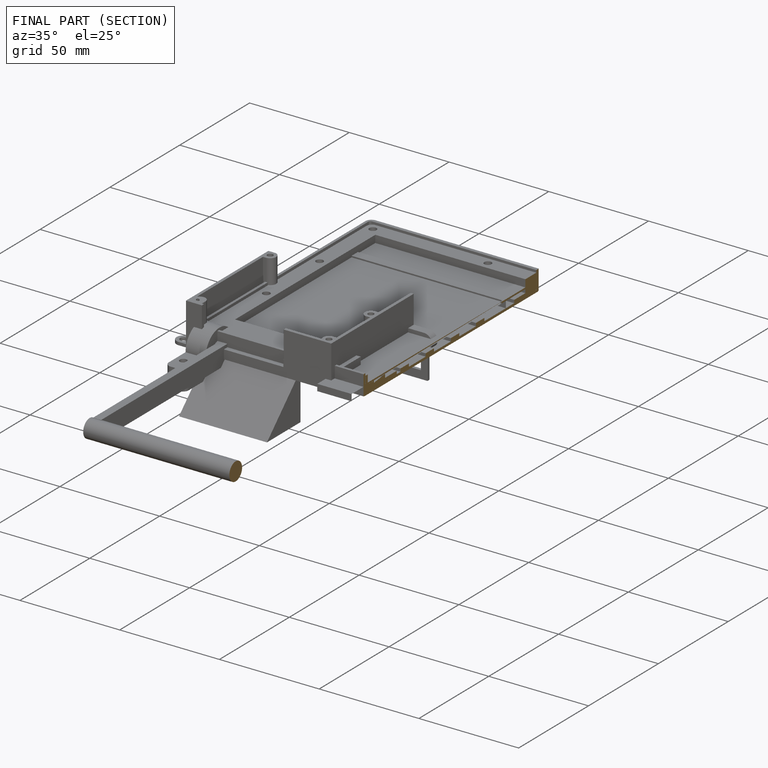
[diagram: finished part — half-section view (interior)]
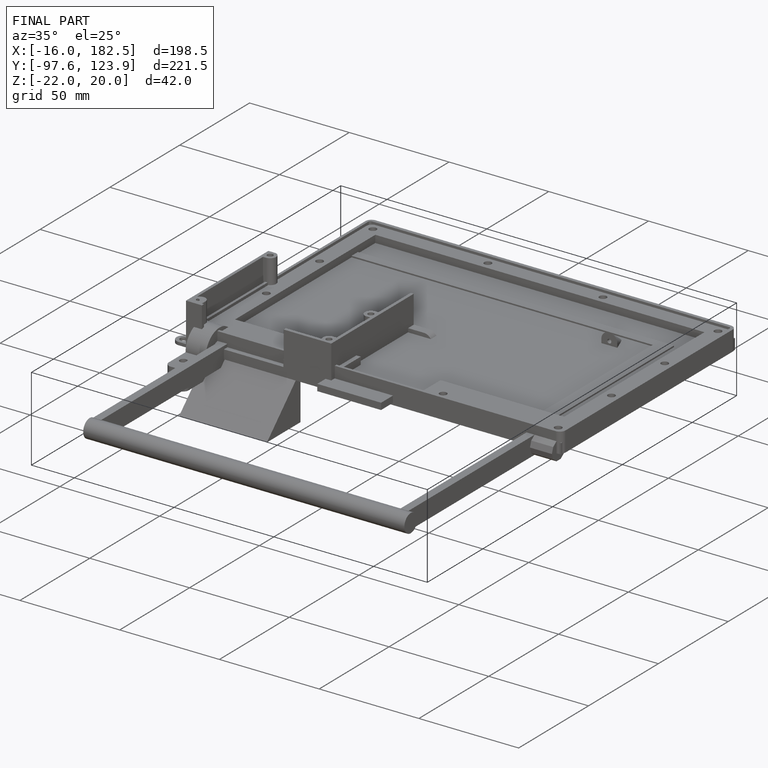
[diagram: finished part — iso view with bounding-box wireframe]
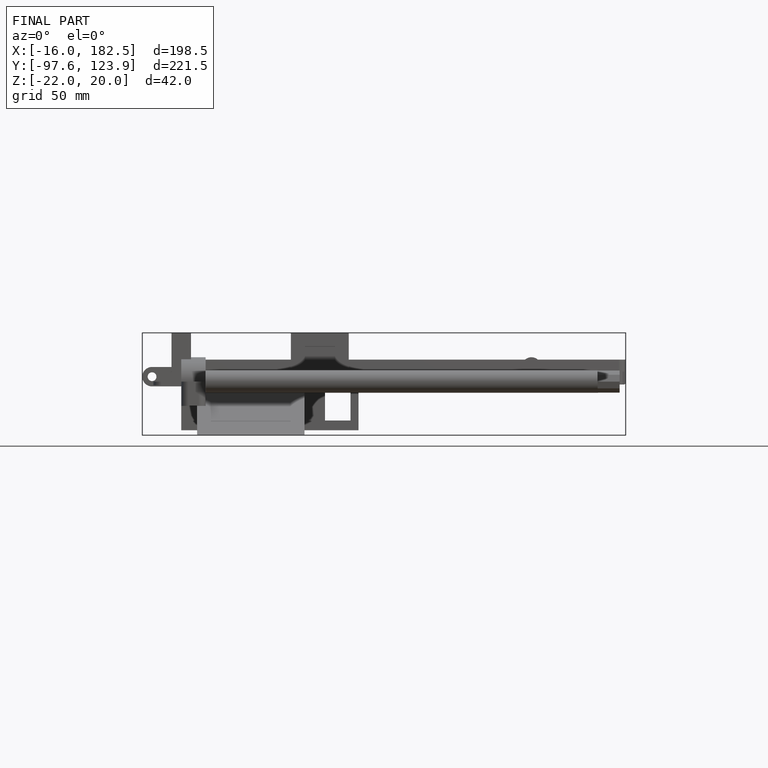
[diagram: finished part — front view with bounding-box wireframe]
